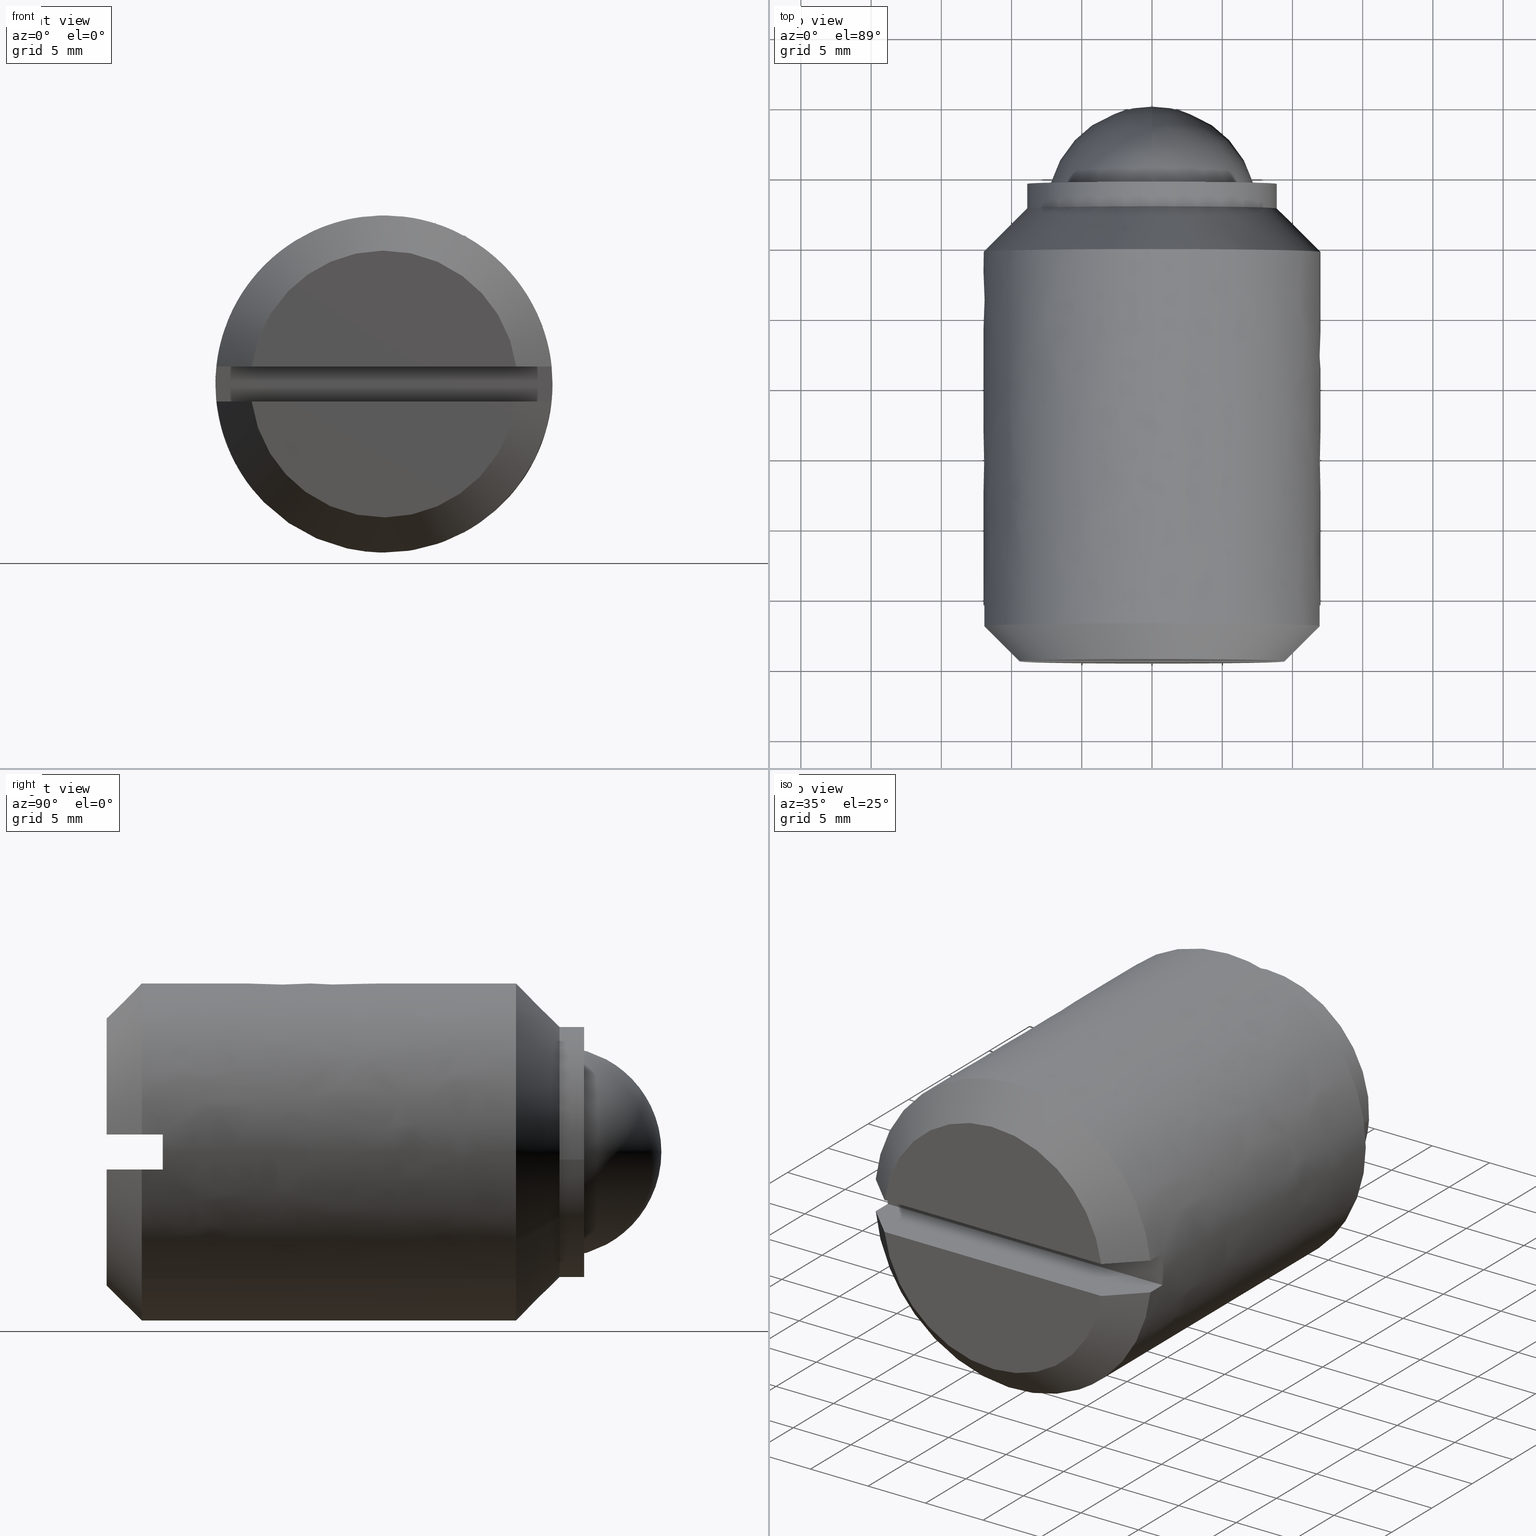
[diagram: canonical four-view strip — front | top / right | iso, engineering-drawing reading convention]
A machine part, canonical four-view strip (front | top / right | iso — engineering-drawing reading convention). The complete STEP part file that produces these views, byte-faithful:
ISO-10303-21;
HEADER;
/****************************************************************
 * Generated by software with PDE/Lib inside                    *
 * PDElib Version 4.4.1-0003, patched  Thursday August 19 11:58 *
 * International Technegroup Inc. (www.iti-oh.com)              *
 ****************************************************************/
FILE_DESCRIPTION((''),'2;1');
FILE_NAME('','2005-07-15T11:25:59',(''),(''),'','CADfix','');
FILE_SCHEMA(('AUTOMOTIVE_DESIGN'));
ENDSEC;
DATA;
#5=APPLICATION_CONTEXT('automotive design');
#6=APPLICATION_PROTOCOL_DEFINITION('Draft International Standard','automotive_design',1998,#5);
#7=PRODUCT_CONTEXT('None',#5,'mechanical');
#8=PRODUCT('body','','None',(#7));
#9=PRODUCT_RELATED_PRODUCT_CATEGORY('part','description',(#8));
#10=PRODUCT_DEFINITION_FORMATION('None','None',#8);
#11=PRODUCT_DEFINITION_CONTEXT('part definition',#5,'design');
#12=PRODUCT_DEFINITION('None','None',#10,#11);
#18=(NAMED_UNIT(*)PLANE_ANGLE_UNIT()SI_UNIT($,.RADIAN.));
#19=DIMENSIONAL_EXPONENTS(0.0,0.0,0.0,0.0,0.0,0.0,0.0);
#20=PLANE_ANGLE_MEASURE_WITH_UNIT(PLANE_ANGLE_MEASURE(0.017453292500000),#18);
#24=(CONVERSION_BASED_UNIT('DEGREE',#20)NAMED_UNIT(#19)PLANE_ANGLE_UNIT());
#28=(NAMED_UNIT(*)SI_UNIT($,.STERADIAN.)SOLID_ANGLE_UNIT());
#32=(LENGTH_UNIT()NAMED_UNIT(*)SI_UNIT(.MILLI.,.METRE.));
#34=UNCERTAINTY_MEASURE_WITH_UNIT(LENGTH_MEASURE(0.001000000000000),#32,'DISTANCE_ACCURACY_VALUE','');
#36=(GEOMETRIC_REPRESENTATION_CONTEXT(3)GLOBAL_UNCERTAINTY_ASSIGNED_CONTEXT((#34))GLOBAL_UNIT_ASSIGNED_CONTEXT((#24,#28,#32))REPRESENTATION_CONTEXT('None','None'));
#37=AXIS2_PLACEMENT_3D('',#38,#39,#40);
#38=CARTESIAN_POINT('',(0.0,0.0,0.0));
#39=DIRECTION('',(0.0,0.0,1.0));
#40=DIRECTION('',(1.0,0.0,0.0));
#41=ADVANCED_BREP_SHAPE_REPRESENTATION('',(#37,#997,#1208),#36);
#42=PRODUCT_DEFINITION_SHAPE('','',#12);
#43=SHAPE_DEFINITION_REPRESENTATION(#42,#41);
#44=CARTESIAN_POINT('',(-7.485154286804126,-22.925000000000001,0.483308473878778));
#45=CARTESIAN_POINT('',(-7.481029228246475,-22.925000000000004,0.535722312461008));
#46=CARTESIAN_POINT('',(-6.888436785039614,-22.925000000000011,8.065323220957298));
#47=CARTESIAN_POINT('',(0.588443217958842,-22.925000000000001,7.476880002998457));
#48=CARTESIAN_POINT('',(8.065323220957298,-22.925000000000011,6.888436785039614));
#49=CARTESIAN_POINT('',(7.472731682033918,-22.925000000000004,-0.641152633445634));
#50=CARTESIAN_POINT('',(7.468607517242433,-22.924999999999994,-0.693555115651955));
#51=CARTESIAN_POINT('',(-7.485154286804126,-5.064375000000001,0.483308473878778));
#52=CARTESIAN_POINT('',(-7.481029228246475,-5.064375000000001,0.535722312461008));
#53=CARTESIAN_POINT('',(-6.888436785039614,-5.064375000000001,8.065323220957298));
#54=CARTESIAN_POINT('',(0.588443217958842,-5.064375000000002,7.476880002998457));
#55=CARTESIAN_POINT('',(8.065323220957298,-5.064375000000001,6.888436785039614));
#56=CARTESIAN_POINT('',(7.472731682033918,-5.064375000000002,-0.641152633445634));
#57=CARTESIAN_POINT('',(7.468607517242433,-5.064375000000000,-0.693555115651955));
#65=(BOUNDED_SURFACE()B_SPLINE_SURFACE(2,1,((#44,#51),(#45,#52),(#46,#53),(#47,#54),(#48,#55),(#49,#56),(#50,#57)),.UNSPECIFIED.,.F.,.F.,.U.)B_SPLINE_SURFACE_WITH_KNOTS((3,1,2,1,3),(2,2),(0.0,0.124277731325298,12.550684602518150,24.977091473710999,25.101342040585809),(0.0,17.860625000000010),.UNSPECIFIED.)GEOMETRIC_REPRESENTATION_ITEM()RATIONAL_B_SPLINE_SURFACE(((1.005858508438040,1.005858508438040),(1.002929254219020,1.002929254219020),(0.707106781186548,0.707106781186548),(1.0,1.0),(0.707106781186548,0.707106781186548),(1.002928613946782,1.002928613946782),(1.005857227893564,1.005857227893564)))REPRESENTATION_ITEM('')SURFACE());
#66=CARTESIAN_POINT('',(0.0,-22.500000000000000,7.500000000000000));
#67=VERTEX_POINT('',#66);
#68=CARTESIAN_POINT('',(-7.476880918083197,-22.500000000000021,0.588431590473621));
#69=VERTEX_POINT('',#68);
#70=CARTESIAN_POINT('',(0.0,-22.500000000000000,7.500000000000000));
#71=CARTESIAN_POINT('',(-6.932939502354531,-22.500000000000004,7.500000000000000));
#72=CARTESIAN_POINT('',(-7.476880918083197,-22.500000000000018,0.588431590473621));
#80=(BOUNDED_CURVE()B_SPLINE_CURVE(2,(#70,#71,#72),.UNSPECIFIED.,.F.,.U.)B_SPLINE_CURVE_WITH_KNOTS((3,3),(0.0,0.236331567219372),.UNSPECIFIED.)CURVE()GEOMETRIC_REPRESENTATION_ITEM()RATIONAL_B_SPLINE_CURVE((1.0,0.723120346279562,0.969723912518388))REPRESENTATION_ITEM(''));
#81=EDGE_CURVE('',#67,#69,#80,.T.);
#82=ORIENTED_EDGE('',*,*,#81,.T.);
#83=CARTESIAN_POINT('',(-7.476880907055129,-5.500000000000000,0.588431730604044));
#84=VERTEX_POINT('',#83);
#85=CARTESIAN_POINT('',(-7.476880918083197,-22.500000000000021,0.588431590473621));
#86=CARTESIAN_POINT('',(-7.476880907055129,-5.500000000000000,0.588431730604044));
#87=QUASI_UNIFORM_CURVE('',1,(#85,#86),.UNSPECIFIED.,.F.,.U.);
#88=EDGE_CURVE('',#69,#84,#87,.T.);
#89=ORIENTED_EDGE('',*,*,#88,.T.);
#90=CARTESIAN_POINT('',(0.0,-5.500000000000000,7.500000000000000));
#91=VERTEX_POINT('',#90);
#92=CARTESIAN_POINT('',(0.0,-5.500000000000000,7.500000000000000));
#93=CARTESIAN_POINT('',(-6.932939372016810,-5.500000000000001,7.500000000000000));
#94=CARTESIAN_POINT('',(-7.476880907055129,-5.500000000000001,0.588431730604044));
#102=(BOUNDED_CURVE()B_SPLINE_CURVE(2,(#92,#93,#94),.UNSPECIFIED.,.F.,.U.)B_SPLINE_CURVE_WITH_KNOTS((3,3),(0.0,0.236331564006562),.UNSPECIFIED.)CURVE()GEOMETRIC_REPRESENTATION_ITEM()RATIONAL_B_SPLINE_CURVE((1.0,0.723120350043603,0.969723905813483))REPRESENTATION_ITEM(''));
#103=EDGE_CURVE('',#91,#84,#102,.T.);
#104=ORIENTED_EDGE('',*,*,#103,.F.);
#105=CARTESIAN_POINT('',(7.476880907055129,-5.500000000000000,-0.588431730604044));
#106=VERTEX_POINT('',#105);
#107=CARTESIAN_POINT('',(7.476880907055129,-5.500000000000000,-0.588431730604044));
#108=CARTESIAN_POINT('',(7.500000000000000,-5.500000000000000,-0.294670032226402));
#109=CARTESIAN_POINT('',(7.500000000000000,-5.500000000000000,0.0));
#110=CARTESIAN_POINT('',(7.500000000000000,-5.500000000000000,7.500000000000000));
#111=CARTESIAN_POINT('',(0.0,-5.500000000000000,7.500000000000000));
#119=(BOUNDED_CURVE()B_SPLINE_CURVE(2,(#107,#108,#109,#110,#111),.UNSPECIFIED.,.F.,.U.)B_SPLINE_CURVE_WITH_KNOTS((3,2,3),(0.736331564006562,0.750000000000000,1.0),.UNSPECIFIED.)CURVE()GEOMETRIC_REPRESENTATION_ITEM()RATIONAL_B_SPLINE_CURVE((0.969723905813483,0.983986431142945,1.0,0.707106781186547,1.0))REPRESENTATION_ITEM(''));
#120=EDGE_CURVE('',#106,#91,#119,.T.);
#121=ORIENTED_EDGE('',*,*,#120,.F.);
#122=CARTESIAN_POINT('',(7.476880918083197,-22.500000000000021,-0.588431590473619));
#123=VERTEX_POINT('',#122);
#124=CARTESIAN_POINT('',(7.476880918083197,-22.500000000000021,-0.588431590473619));
#125=CARTESIAN_POINT('',(7.476880907055129,-5.500000000000000,-0.588431730604044));
#126=QUASI_UNIFORM_CURVE('',1,(#124,#125),.UNSPECIFIED.,.F.,.U.);
#127=EDGE_CURVE('',#123,#106,#126,.T.);
#128=ORIENTED_EDGE('',*,*,#127,.F.);
#129=CARTESIAN_POINT('',(7.476880918083197,-22.500000000000014,-0.588431590473619));
#130=CARTESIAN_POINT('',(7.500000000000001,-22.500000000000000,-0.294669961836062));
#131=CARTESIAN_POINT('',(7.500000000000000,-22.500000000000000,0.0));
#132=CARTESIAN_POINT('',(7.500000000000000,-22.500000000000004,7.500000000000000));
#133=CARTESIAN_POINT('',(0.0,-22.500000000000000,7.500000000000000));
#141=(BOUNDED_CURVE()B_SPLINE_CURVE(2,(#129,#130,#131,#132,#133),.UNSPECIFIED.,.F.,.U.)B_SPLINE_CURVE_WITH_KNOTS((3,2,3),(0.736331567219372,0.750000000000000,1.0),.UNSPECIFIED.)CURVE()GEOMETRIC_REPRESENTATION_ITEM()RATIONAL_B_SPLINE_CURVE((0.969723912518388,0.983986434906986,1.0,0.707106781186547,1.0))REPRESENTATION_ITEM(''));
#142=EDGE_CURVE('',#123,#67,#141,.T.);
#143=ORIENTED_EDGE('',*,*,#142,.T.);
#144=EDGE_LOOP('',(#82,#89,#104,#121,#128,#143));
#145=FACE_OUTER_BOUND('',#144,.T.);
#146=ADVANCED_FACE('',(#145),#65,.F.);
#147=CARTESIAN_POINT('',(7.485154286804158,-22.924999999999997,-0.483308473878386));
#148=CARTESIAN_POINT('',(7.481029228246493,-22.925000000000008,-0.535722312460811));
#149=CARTESIAN_POINT('',(6.888436785039614,-22.925000000000011,-8.065323220957298));
#150=CARTESIAN_POINT('',(-0.588443217958842,-22.925000000000001,-7.476880002998457));
#151=CARTESIAN_POINT('',(-8.065323220957298,-22.925000000000011,-6.888436785039614));
#152=CARTESIAN_POINT('',(-7.472731682033916,-22.924999999999994,0.641152633445626));
#153=CARTESIAN_POINT('',(-7.468607517242435,-22.925000000000008,0.693555115651941));
#154=CARTESIAN_POINT('',(7.485154286804158,-5.064375000000001,-0.483308473878386));
#155=CARTESIAN_POINT('',(7.481029228246493,-5.064375000000002,-0.535722312460811));
#156=CARTESIAN_POINT('',(6.888436785039614,-5.064375000000001,-8.065323220957298));
#157=CARTESIAN_POINT('',(-0.588443217958842,-5.064375000000002,-7.476880002998457));
#158=CARTESIAN_POINT('',(-8.065323220957298,-5.064375000000001,-6.888436785039614));
#159=CARTESIAN_POINT('',(-7.472731682033916,-5.064375000000000,0.641152633445626));
#160=CARTESIAN_POINT('',(-7.468607517242435,-5.064375000000002,0.693555115651941));
#168=(BOUNDED_SURFACE()B_SPLINE_SURFACE(2,1,((#147,#154),(#148,#155),(#149,#156),(#150,#157),(#151,#158),(#152,#159),(#153,#160)),.UNSPECIFIED.,.F.,.F.,.U.)B_SPLINE_SURFACE_WITH_KNOTS((3,1,2,1,3),(2,2),(0.0,0.124277731325765,12.550684602518610,24.977091473711461,25.101342040586260),(0.0,17.860625000000010),.UNSPECIFIED.)GEOMETRIC_REPRESENTATION_ITEM()RATIONAL_B_SPLINE_SURFACE(((1.005858508438062,1.005858508438062),(1.002929254219031,1.002929254219031),(0.707106781186548,0.707106781186548),(1.0,1.0),(0.707106781186548,0.707106781186548),(1.002928613946782,1.002928613946782),(1.005857227893563,1.005857227893563)))REPRESENTATION_ITEM('')SURFACE());
#169=CARTESIAN_POINT('',(0.0,-22.500000000000000,-7.500000000000000));
#170=VERTEX_POINT('',#169);
#171=CARTESIAN_POINT('',(-7.476880918083197,-22.500000000000018,0.588431590473621));
#172=CARTESIAN_POINT('',(-7.499999999999999,-22.500000000000000,0.294669961836063));
#173=CARTESIAN_POINT('',(-7.500000000000000,-22.500000000000000,0.0));
#174=CARTESIAN_POINT('',(-7.500000000000000,-22.500000000000004,-7.500000000000000));
#175=CARTESIAN_POINT('',(0.0,-22.500000000000000,-7.500000000000000));
#183=(BOUNDED_CURVE()B_SPLINE_CURVE(2,(#171,#172,#173,#174,#175),.UNSPECIFIED.,.F.,.U.)B_SPLINE_CURVE_WITH_KNOTS((3,2,3),(0.236331567219372,0.250000000000000,0.500000000000000),.UNSPECIFIED.)CURVE()GEOMETRIC_REPRESENTATION_ITEM()RATIONAL_B_SPLINE_CURVE((0.969723912518388,0.983986434906986,1.0,0.707106781186547,1.0))REPRESENTATION_ITEM(''));
#184=EDGE_CURVE('',#69,#170,#183,.T.);
#185=ORIENTED_EDGE('',*,*,#184,.T.);
#186=CARTESIAN_POINT('',(0.0,-22.500000000000000,-7.500000000000000));
#187=CARTESIAN_POINT('',(6.932939502354533,-22.500000000000004,-7.500000000000000));
#188=CARTESIAN_POINT('',(7.476880918083197,-22.500000000000014,-0.588431590473619));
#196=(BOUNDED_CURVE()B_SPLINE_CURVE(2,(#186,#187,#188),.UNSPECIFIED.,.F.,.U.)B_SPLINE_CURVE_WITH_KNOTS((3,3),(0.500000000000000,0.736331567219372),.UNSPECIFIED.)CURVE()GEOMETRIC_REPRESENTATION_ITEM()RATIONAL_B_SPLINE_CURVE((1.0,0.723120346279562,0.969723912518388))REPRESENTATION_ITEM(''));
#197=EDGE_CURVE('',#170,#123,#196,.T.);
#198=ORIENTED_EDGE('',*,*,#197,.T.);
#199=ORIENTED_EDGE('',*,*,#127,.T.);
#200=CARTESIAN_POINT('',(0.0,-5.500000000000000,-7.500000000000000));
#201=VERTEX_POINT('',#200);
#202=CARTESIAN_POINT('',(0.0,-5.500000000000000,-7.500000000000000));
#203=CARTESIAN_POINT('',(6.932939372016812,-5.500000000000000,-7.500000000000000));
#204=CARTESIAN_POINT('',(7.476880907055129,-5.500000000000000,-0.588431730604044));
#212=(BOUNDED_CURVE()B_SPLINE_CURVE(2,(#202,#203,#204),.UNSPECIFIED.,.F.,.U.)B_SPLINE_CURVE_WITH_KNOTS((3,3),(0.500000000000000,0.736331564006562),.UNSPECIFIED.)CURVE()GEOMETRIC_REPRESENTATION_ITEM()RATIONAL_B_SPLINE_CURVE((1.0,0.723120350043603,0.969723905813483))REPRESENTATION_ITEM(''));
#213=EDGE_CURVE('',#201,#106,#212,.T.);
#214=ORIENTED_EDGE('',*,*,#213,.F.);
#215=CARTESIAN_POINT('',(-7.476880907055129,-5.500000000000001,0.588431730604044));
#216=CARTESIAN_POINT('',(-7.500000000000000,-5.500000000000001,0.294670032226404));
#217=CARTESIAN_POINT('',(-7.500000000000000,-5.500000000000000,0.0));
#218=CARTESIAN_POINT('',(-7.500000000000000,-5.500000000000000,-7.500000000000000));
#219=CARTESIAN_POINT('',(0.0,-5.500000000000000,-7.500000000000000));
#227=(BOUNDED_CURVE()B_SPLINE_CURVE(2,(#215,#216,#217,#218,#219),.UNSPECIFIED.,.F.,.U.)B_SPLINE_CURVE_WITH_KNOTS((3,2,3),(0.236331564006562,0.250000000000000,0.500000000000000),.UNSPECIFIED.)CURVE()GEOMETRIC_REPRESENTATION_ITEM()RATIONAL_B_SPLINE_CURVE((0.969723905813483,0.983986431142945,1.0,0.707106781186547,1.0))REPRESENTATION_ITEM(''));
#228=EDGE_CURVE('',#84,#201,#227,.T.);
#229=ORIENTED_EDGE('',*,*,#228,.F.);
#230=ORIENTED_EDGE('',*,*,#88,.F.);
#231=EDGE_LOOP('',(#185,#198,#199,#214,#229,#230));
#232=FACE_OUTER_BOUND('',#231,.T.);
#233=ADVANCED_FACE('',(#232),#168,.F.);
#234=CARTESIAN_POINT('',(8.883399705954613,-5.456249999999996,-0.543332001860230));
#235=CARTESIAN_POINT('',(9.426731707814840,-5.456249999999995,8.340067704094384));
#236=CARTESIAN_POINT('',(0.543332001860227,-5.456249999999996,8.883399705954611));
#237=CARTESIAN_POINT('',(-8.340067704094386,-5.456249999999995,9.426731707814838));
#238=CARTESIAN_POINT('',(-8.883399705954613,-5.456249999999996,0.543332001860225));
#239=CARTESIAN_POINT('',(8.883399705954613,-7.294843750000104,-0.543332001860230));
#240=CARTESIAN_POINT('',(9.426731707814840,-7.294843750000104,8.340067704094384));
#241=CARTESIAN_POINT('',(0.543332001860227,-7.294843750000104,8.883399705954611));
#242=CARTESIAN_POINT('',(-8.340067704094386,-7.294843750000104,9.426731707814838));
#243=CARTESIAN_POINT('',(-8.883399705954613,-7.294843750000104,0.543332001860225));
#251=(BOUNDED_SURFACE()B_SPLINE_SURFACE(2,1,((#234,#239),(#235,#240),(#236,#241),(#237,#242),(#238,#243)),.UNSPECIFIED.,.F.,.F.,.U.)B_SPLINE_SURFACE_WITH_KNOTS((3,2,3),(2,2),(0.0,14.746002820482181,29.492005640964368),(0.0,1.0),.UNSPECIFIED.)GEOMETRIC_REPRESENTATION_ITEM()RATIONAL_B_SPLINE_SURFACE(((1.0,1.0),(0.707106781186548,0.707106781186548),(1.0,1.0),(0.707106781186548,0.707106781186548),(1.0,1.0)))REPRESENTATION_ITEM('')SURFACE());
#252=CARTESIAN_POINT('',(8.883400014661509,-7.249999999999981,-0.543326954500055));
#253=VERTEX_POINT('',#252);
#254=CARTESIAN_POINT('',(0.0,-7.250000000000100,8.899999999999999));
#255=VERTEX_POINT('',#254);
#256=CARTESIAN_POINT('',(8.883400014661509,-7.249999999999981,-0.543326954500055));
#257=CARTESIAN_POINT('',(8.900000000000000,-7.250000000000100,-0.271917062601313));
#258=CARTESIAN_POINT('',(8.900000000000000,-7.250000000000100,-2.571673E-015));
#259=CARTESIAN_POINT('',(8.900000000000000,-7.250000000000100,8.899999999999999));
#260=CARTESIAN_POINT('',(0.0,-7.250000000000100,8.899999999999999));
#268=(BOUNDED_CURVE()B_SPLINE_CURVE(2,(#256,#257,#258,#259,#260),.UNSPECIFIED.,.F.,.U.)B_SPLINE_CURVE_WITH_KNOTS((3,2,3),(0.239333060279419,0.250000000000000,0.500000000000000),.UNSPECIFIED.)CURVE()GEOMETRIC_REPRESENTATION_ITEM()RATIONAL_B_SPLINE_CURVE((0.976072251786210,0.987502902761400,1.0,0.707106781186548,1.0))REPRESENTATION_ITEM(''));
#269=EDGE_CURVE('',#253,#255,#268,.T.);
#270=ORIENTED_EDGE('',*,*,#269,.F.);
#271=CARTESIAN_POINT('',(8.883400044957174,-5.500000000000000,-0.543326459160618));
#272=VERTEX_POINT('',#271);
#273=CARTESIAN_POINT('',(8.883400044957174,-5.500000000000000,-0.543326459160618));
#274=CARTESIAN_POINT('',(8.883400014661509,-7.249999999999981,-0.543326954500055));
#275=QUASI_UNIFORM_CURVE('',1,(#273,#274),.UNSPECIFIED.,.F.,.U.);
#276=EDGE_CURVE('',#272,#253,#275,.T.);
#277=ORIENTED_EDGE('',*,*,#276,.F.);
#278=CARTESIAN_POINT('',(0.0,-5.500000000000000,8.899999999999999));
#279=VERTEX_POINT('',#278);
#280=CARTESIAN_POINT('',(8.883400044957174,-5.500000000000000,-0.543326459160618));
#281=CARTESIAN_POINT('',(8.900000000000000,-5.500000000000001,-0.271916814237175));
#282=CARTESIAN_POINT('',(8.900000000000000,-5.500000000000000,-2.571673E-015));
#283=CARTESIAN_POINT('',(8.900000000000000,-5.500000000000001,8.899999999999999));
#284=CARTESIAN_POINT('',(0.0,-5.500000000000000,8.899999999999999));
#292=(BOUNDED_CURVE()B_SPLINE_CURVE(2,(#280,#281,#282,#283,#284),.UNSPECIFIED.,.F.,.U.)B_SPLINE_CURVE_WITH_KNOTS((3,2,3),(0.239333069900650,0.250000000000000,0.500000000000000),.UNSPECIFIED.)CURVE()GEOMETRIC_REPRESENTATION_ITEM()RATIONAL_B_SPLINE_CURVE((0.976072272406359,0.987502914033373,1.0,0.707106781186548,1.0))REPRESENTATION_ITEM(''));
#293=EDGE_CURVE('',#272,#279,#292,.T.);
#294=ORIENTED_EDGE('',*,*,#293,.T.);
#295=CARTESIAN_POINT('',(-8.883400044957174,-5.500000000000000,0.543326459160610));
#296=VERTEX_POINT('',#295);
#297=CARTESIAN_POINT('',(0.0,-5.500000000000000,8.899999999999999));
#298=CARTESIAN_POINT('',(-8.372289229018241,-5.500000000000001,8.899999999999997));
#299=CARTESIAN_POINT('',(-8.883400044957174,-5.500000000000000,0.543326459160610));
#307=(BOUNDED_CURVE()B_SPLINE_CURVE(2,(#297,#298,#299),.UNSPECIFIED.,.F.,.U.)B_SPLINE_CURVE_WITH_KNOTS((3,3),(0.500000000000000,0.739333069900650),.UNSPECIFIED.)CURVE()GEOMETRIC_REPRESENTATION_ITEM()RATIONAL_B_SPLINE_CURVE((1.0,0.719603867153174,0.976072272406359))REPRESENTATION_ITEM(''));
#308=EDGE_CURVE('',#279,#296,#307,.T.);
#309=ORIENTED_EDGE('',*,*,#308,.T.);
#310=CARTESIAN_POINT('',(-8.883399705955075,-7.250000000002036,0.543332001866780));
#311=VERTEX_POINT('',#310);
#312=CARTESIAN_POINT('',(-8.883400044957174,-5.500000000000000,0.543326459160610));
#313=CARTESIAN_POINT('',(-8.883399705955075,-7.250000000002036,0.543332001866780));
#314=QUASI_UNIFORM_CURVE('',1,(#312,#313),.UNSPECIFIED.,.F.,.U.);
#315=EDGE_CURVE('',#296,#311,#314,.T.);
#316=ORIENTED_EDGE('',*,*,#315,.T.);
#317=CARTESIAN_POINT('',(0.0,-7.250000000000100,8.899999999999999));
#318=CARTESIAN_POINT('',(-8.372283995436124,-7.250000000000100,8.899999999999999));
#319=CARTESIAN_POINT('',(-8.883399705955075,-7.250000000002036,0.543332001866780));
#327=(BOUNDED_CURVE()B_SPLINE_CURVE(2,(#317,#318,#319),.UNSPECIFIED.,.F.,.U.)B_SPLINE_CURVE_WITH_KNOTS((3,3),(0.500000000000000,0.739332962241463),.UNSPECIFIED.)CURVE()GEOMETRIC_REPRESENTATION_ITEM()RATIONAL_B_SPLINE_CURVE((1.0,0.719603993283758,0.976072041672119))REPRESENTATION_ITEM(''));
#328=EDGE_CURVE('',#255,#311,#327,.T.);
#329=ORIENTED_EDGE('',*,*,#328,.F.);
#330=EDGE_LOOP('',(#270,#277,#294,#309,#316,#329));
#331=FACE_OUTER_BOUND('',#330,.T.);
#332=ADVANCED_FACE('',(#331),#251,.T.);
#333=CARTESIAN_POINT('',(-8.883399705954613,-5.456249999999996,0.543332001860225));
#334=CARTESIAN_POINT('',(-9.426731707814840,-5.456249999999995,-8.340067704094388));
#335=CARTESIAN_POINT('',(-0.543332001860227,-5.456249999999996,-8.883399705954615));
#336=CARTESIAN_POINT('',(8.340067704094386,-5.456249999999995,-9.426731707814842));
#337=CARTESIAN_POINT('',(8.883399705954613,-5.456249999999996,-0.543332001860230));
#338=CARTESIAN_POINT('',(-8.883399705954613,-7.294843750000104,0.543332001860225));
#339=CARTESIAN_POINT('',(-9.426731707814840,-7.294843750000104,-8.340067704094388));
#340=CARTESIAN_POINT('',(-0.543332001860227,-7.294843750000104,-8.883399705954615));
#341=CARTESIAN_POINT('',(8.340067704094386,-7.294843750000104,-9.426731707814842));
#342=CARTESIAN_POINT('',(8.883399705954613,-7.294843750000104,-0.543332001860230));
#350=(BOUNDED_SURFACE()B_SPLINE_SURFACE(2,1,((#333,#338),(#334,#339),(#335,#340),(#336,#341),(#337,#342)),.UNSPECIFIED.,.F.,.F.,.U.)B_SPLINE_SURFACE_WITH_KNOTS((3,2,3),(2,2),(0.0,14.746002820482181,29.492005640964351),(0.0,1.0),.UNSPECIFIED.)GEOMETRIC_REPRESENTATION_ITEM()RATIONAL_B_SPLINE_SURFACE(((1.0,1.0),(0.707106781186548,0.707106781186548),(1.0,1.0),(0.707106781186548,0.707106781186548),(1.0,1.0)))REPRESENTATION_ITEM('')SURFACE());
#351=CARTESIAN_POINT('',(7.585456119837495,-7.250000000000375,-4.655196607451158));
#352=VERTEX_POINT('',#351);
#353=CARTESIAN_POINT('',(7.585456119837495,-7.250000000000375,-4.655196607451158));
#354=CARTESIAN_POINT('',(8.747744593448731,-7.250000000000100,-2.761294167100793));
#355=CARTESIAN_POINT('',(8.883400014661509,-7.249999999999981,-0.543326954500055));
#363=(BOUNDED_CURVE()B_SPLINE_CURVE(2,(#353,#354,#355),.UNSPECIFIED.,.F.,.U.)B_SPLINE_CURVE_WITH_KNOTS((3,3),(0.160617616591238,0.239333060279419),.UNSPECIFIED.)CURVE()GEOMETRIC_REPRESENTATION_ITEM()RATIONAL_B_SPLINE_CURVE((0.865443586338462,0.891721089529175,0.976072251786210))REPRESENTATION_ITEM(''));
#364=EDGE_CURVE('',#352,#253,#363,.T.);
#365=ORIENTED_EDGE('',*,*,#364,.F.);
#366=CARTESIAN_POINT('',(0.0,-7.250000000000100,-8.900000000000002));
#367=VERTEX_POINT('',#366);
#368=CARTESIAN_POINT('',(0.0,-7.250000000000100,-8.900000000000002));
#369=CARTESIAN_POINT('',(4.980419054150716,-7.250000000000101,-8.900000000000002));
#370=CARTESIAN_POINT('',(7.585456119837495,-7.250000000000375,-4.655196607451158));
#378=(BOUNDED_CURVE()B_SPLINE_CURVE(2,(#368,#369,#370),.UNSPECIFIED.,.F.,.U.)B_SPLINE_CURVE_WITH_KNOTS((3,3),(0.0,0.160617616591238),.UNSPECIFIED.)CURVE()GEOMETRIC_REPRESENTATION_ITEM()RATIONAL_B_SPLINE_CURVE((1.0,0.811824757113790,0.865443586338462))REPRESENTATION_ITEM(''));
#379=EDGE_CURVE('',#367,#352,#378,.T.);
#380=ORIENTED_EDGE('',*,*,#379,.F.);
#381=CARTESIAN_POINT('',(-8.883399705955075,-7.250000000002036,0.543332001866780));
#382=CARTESIAN_POINT('',(-8.900000000000000,-7.250000000000100,0.271919593370481));
#383=CARTESIAN_POINT('',(-8.900000000000000,-7.250000000000100,-2.571673E-015));
#384=CARTESIAN_POINT('',(-8.900000000000000,-7.250000000000100,-8.900000000000002));
#385=CARTESIAN_POINT('',(0.0,-7.250000000000100,-8.900000000000002));
#393=(BOUNDED_CURVE()B_SPLINE_CURVE(2,(#381,#382,#383,#384,#385),.UNSPECIFIED.,.F.,.U.)B_SPLINE_CURVE_WITH_KNOTS((3,2,3),(0.739332962241463,0.750000000000000,1.0),.UNSPECIFIED.)CURVE()GEOMETRIC_REPRESENTATION_ITEM()RATIONAL_B_SPLINE_CURVE((0.976072041672119,0.987502787902790,1.0,0.707106781186548,1.0))REPRESENTATION_ITEM(''));
#394=EDGE_CURVE('',#311,#367,#393,.T.);
#395=ORIENTED_EDGE('',*,*,#394,.F.);
#396=ORIENTED_EDGE('',*,*,#315,.F.);
#397=CARTESIAN_POINT('',(0.0,-5.500000000000000,-8.900000000000002));
#398=VERTEX_POINT('',#397);
#399=CARTESIAN_POINT('',(-8.883400044957174,-5.500000000000000,0.543326459160610));
#400=CARTESIAN_POINT('',(-8.900000000000000,-5.500000000000001,0.271916814237170));
#401=CARTESIAN_POINT('',(-8.900000000000000,-5.500000000000000,-2.571673E-015));
#402=CARTESIAN_POINT('',(-8.900000000000000,-5.500000000000001,-8.900000000000002));
#403=CARTESIAN_POINT('',(0.0,-5.500000000000000,-8.900000000000002));
#411=(BOUNDED_CURVE()B_SPLINE_CURVE(2,(#399,#400,#401,#402,#403),.UNSPECIFIED.,.F.,.U.)B_SPLINE_CURVE_WITH_KNOTS((3,2,3),(0.739333069900650,0.750000000000000,1.0),.UNSPECIFIED.)CURVE()GEOMETRIC_REPRESENTATION_ITEM()RATIONAL_B_SPLINE_CURVE((0.976072272406359,0.987502914033373,1.0,0.707106781186548,1.0))REPRESENTATION_ITEM(''));
#412=EDGE_CURVE('',#296,#398,#411,.T.);
#413=ORIENTED_EDGE('',*,*,#412,.T.);
#414=CARTESIAN_POINT('',(0.0,-5.500000000000000,-8.900000000000002));
#415=CARTESIAN_POINT('',(8.372289229018241,-5.500000000000001,-8.900000000000002));
#416=CARTESIAN_POINT('',(8.883400044957174,-5.500000000000000,-0.543326459160618));
#424=(BOUNDED_CURVE()B_SPLINE_CURVE(2,(#414,#415,#416),.UNSPECIFIED.,.F.,.U.)B_SPLINE_CURVE_WITH_KNOTS((3,3),(0.0,0.239333069900650),.UNSPECIFIED.)CURVE()GEOMETRIC_REPRESENTATION_ITEM()RATIONAL_B_SPLINE_CURVE((1.0,0.719603867153174,0.976072272406359))REPRESENTATION_ITEM(''));
#425=EDGE_CURVE('',#398,#272,#424,.T.);
#426=ORIENTED_EDGE('',*,*,#425,.T.);
#427=ORIENTED_EDGE('',*,*,#276,.T.);
#428=EDGE_LOOP('',(#365,#380,#395,#396,#413,#426,#427));
#429=FACE_OUTER_BOUND('',#428,.T.);
#430=ADVANCED_FACE('',(#429),#350,.T.);
#431=CARTESIAN_POINT('',(7.519402990706377,-7.172500000000099,-4.614659783056164));
#432=CARTESIAN_POINT('',(8.671569020301051,-7.172500000000101,-2.737251459145703));
#433=CARTESIAN_POINT('',(8.806044259076920,-7.172500000000102,-0.538600740046278));
#434=CARTESIAN_POINT('',(9.344644999123196,-7.172500000000102,8.267443519030641));
#435=CARTESIAN_POINT('',(0.538600740046276,-7.172500000000102,8.806044259076918));
#436=CARTESIAN_POINT('',(-8.267443519030644,-7.172500000000102,9.344644999123194));
#437=CARTESIAN_POINT('',(-8.806044259076920,-7.172500000000102,0.538600740046273));
#438=CARTESIAN_POINT('',(10.295285742538956,-10.429437499999997,-6.318219828074808));
#439=CARTESIAN_POINT('',(11.872788439519626,-10.429437499999999,-3.747742467841770));
#440=CARTESIAN_POINT('',(12.056906914111931,-10.429437500000001,-0.737432017777580));
#441=CARTESIAN_POINT('',(12.794338931889508,-10.429437499999999,11.319474896334350));
#442=CARTESIAN_POINT('',(0.737432017777578,-10.429437500000001,12.056906914111931));
#443=CARTESIAN_POINT('',(-11.319474896334356,-10.429437499999999,12.794338931889506));
#444=CARTESIAN_POINT('',(-12.056906914111931,-10.429437500000001,0.737432017777575));
#452=(BOUNDED_SURFACE()B_SPLINE_SURFACE(2,1,((#431,#438),(#432,#439),(#433,#440),(#434,#441),(#435,#442),(#436,#443),(#437,#444)),.UNSPECIFIED.,.F.,.F.,.U.)B_SPLINE_SURFACE_WITH_KNOTS((3,2,2,3),(2,2),(0.0,6.404437553072783,26.418304906425220,46.432172259777651),(0.0,4.606005184301373),.UNSPECIFIED.)GEOMETRIC_REPRESENTATION_ITEM()RATIONAL_B_SPLINE_SURFACE(((0.872532871172386,0.872532871172386),(0.906274169979695,0.906274169979695),(1.0,1.0),(0.707106781186548,0.707106781186548),(1.0,1.0),(0.707106781186548,0.707106781186548),(1.0,1.0)))REPRESENTATION_ITEM('')SURFACE());
#453=CARTESIAN_POINT('',(10.227581285169300,-10.350000000000980,-6.276669583089166));
#454=VERTEX_POINT('',#453);
#455=CARTESIAN_POINT('',(0.0,-10.350000000000000,12.0));
#456=VERTEX_POINT('',#455);
#457=CARTESIAN_POINT('',(10.227581285169304,-10.350000000000975,-6.276669583089166));
#458=CARTESIAN_POINT('',(11.999999999999996,-10.350000000000001,-3.388584391209628));
#459=CARTESIAN_POINT('',(12.0,-10.350000000000000,-2.571673E-015));
#460=CARTESIAN_POINT('',(12.0,-10.350000000000001,11.999999999999998));
#461=CARTESIAN_POINT('',(0.0,-10.350000000000000,12.0));
#469=(BOUNDED_CURVE()B_SPLINE_CURVE(2,(#457,#458,#459,#460,#461),.UNSPECIFIED.,.F.,.U.)B_SPLINE_CURVE_WITH_KNOTS((3,2,3),(0.160617616590979,0.250000000000000,0.500000000000000),.UNSPECIFIED.)CURVE()GEOMETRIC_REPRESENTATION_ITEM()RATIONAL_B_SPLINE_CURVE((0.865443586338289,0.895282024072454,1.0,0.707106781186548,1.0))REPRESENTATION_ITEM(''));
#470=EDGE_CURVE('',#454,#456,#469,.T.);
#471=ORIENTED_EDGE('',*,*,#470,.F.);
#472=CARTESIAN_POINT('',(7.585456119837495,-7.250000000000375,-4.655196607451158));
#473=CARTESIAN_POINT('',(10.227581285169300,-10.350000000000980,-6.276669583089166));
#474=QUASI_UNIFORM_CURVE('',1,(#472,#473),.UNSPECIFIED.,.F.,.U.);
#475=EDGE_CURVE('',#352,#454,#474,.T.);
#476=ORIENTED_EDGE('',*,*,#475,.F.);
#477=ORIENTED_EDGE('',*,*,#364,.T.);
#478=ORIENTED_EDGE('',*,*,#269,.T.);
#479=ORIENTED_EDGE('',*,*,#328,.T.);
#480=CARTESIAN_POINT('',(-11.977617581065591,-10.350000000006011,0.732582474463767));
#481=VERTEX_POINT('',#480);
#482=CARTESIAN_POINT('',(-8.883399705955075,-7.250000000002036,0.543332001866780));
#483=CARTESIAN_POINT('',(-11.977617581065591,-10.350000000006011,0.732582474463767));
#484=QUASI_UNIFORM_CURVE('',1,(#482,#483),.UNSPECIFIED.,.F.,.U.);
#485=EDGE_CURVE('',#311,#481,#484,.T.);
#486=ORIENTED_EDGE('',*,*,#485,.T.);
#487=CARTESIAN_POINT('',(0.0,-10.350000000000000,12.0));
#488=CARTESIAN_POINT('',(-11.288472802783120,-10.350000000000001,11.999999999999998));
#489=CARTESIAN_POINT('',(-11.977617581065589,-10.350000000006006,0.732582474463767));
#497=(BOUNDED_CURVE()B_SPLINE_CURVE(2,(#487,#488,#489),.UNSPECIFIED.,.F.,.U.)B_SPLINE_CURVE_WITH_KNOTS((3,3),(0.500000000000000,0.739332962240668),.UNSPECIFIED.)CURVE()GEOMETRIC_REPRESENTATION_ITEM()RATIONAL_B_SPLINE_CURVE((1.0,0.719603993284689,0.976072041670415))REPRESENTATION_ITEM(''));
#498=EDGE_CURVE('',#456,#481,#497,.T.);
#499=ORIENTED_EDGE('',*,*,#498,.F.);
#500=EDGE_LOOP('',(#471,#476,#477,#478,#479,#486,#499));
#501=FACE_OUTER_BOUND('',#500,.T.);
#502=ADVANCED_FACE('',(#501),#452,.T.);
#503=CARTESIAN_POINT('',(-8.806044259076920,-7.172500000000102,0.538600740046273));
#504=CARTESIAN_POINT('',(-9.344644999123196,-7.172500000000102,-8.267443519030646));
#505=CARTESIAN_POINT('',(-0.538600740046276,-7.172500000000102,-8.806044259076922));
#506=CARTESIAN_POINT('',(4.748688009489147,-7.172500000000101,-9.129428692490686));
#507=CARTESIAN_POINT('',(7.519402990706377,-7.172500000000099,-4.614659783056164));
#508=CARTESIAN_POINT('',(-12.056906914111931,-10.429437500000001,0.737432017777575));
#509=CARTESIAN_POINT('',(-12.794338931889508,-10.429437499999999,-11.319474896334356));
#510=CARTESIAN_POINT('',(-0.737432017777578,-10.429437500000001,-12.056906914111931));
#511=CARTESIAN_POINT('',(6.501726270062118,-10.429437499999997,-12.499672802680299));
#512=CARTESIAN_POINT('',(10.295285742538956,-10.429437499999997,-6.318219828074808));
#520=(BOUNDED_SURFACE()B_SPLINE_SURFACE(2,1,((#503,#508),(#504,#509),(#505,#510),(#506,#511),(#507,#512)),.UNSPECIFIED.,.F.,.F.,.U.)B_SPLINE_SURFACE_WITH_KNOTS((3,2,3),(2,2),(0.0,20.013867353352431,33.623297153632080),(0.0,4.606005184301374),.UNSPECIFIED.)GEOMETRIC_REPRESENTATION_ITEM()RATIONAL_B_SPLINE_SURFACE(((1.0,1.0),(0.707106781186548,0.707106781186548),(1.0,1.0),(0.800832611206852,0.800832611206852),(0.872532871172386,0.872532871172386)))REPRESENTATION_ITEM('')SURFACE());
#521=CARTESIAN_POINT('',(7.907633907891853,-10.350000000000000,-9.026036005842066));
#522=VERTEX_POINT('',#521);
#523=CARTESIAN_POINT('',(7.907633907891853,-10.349999999999998,-9.026036005842066));
#524=CARTESIAN_POINT('',(9.276014710696218,-10.350000000000003,-7.827209142293152));
#525=CARTESIAN_POINT('',(10.227581285169304,-10.350000000000975,-6.276669583089166));
#533=(BOUNDED_CURVE()B_SPLINE_CURVE(2,(#523,#524,#525),.UNSPECIFIED.,.F.,.U.)B_SPLINE_CURVE_WITH_KNOTS((3,3),(0.115045263890947,0.160617616590979),.UNSPECIFIED.)CURVE()GEOMETRIC_REPRESENTATION_ITEM()RATIONAL_B_SPLINE_CURVE((0.854482183304713,0.850230210317461,0.865443586338289))REPRESENTATION_ITEM(''));
#534=EDGE_CURVE('',#522,#454,#533,.T.);
#535=ORIENTED_EDGE('',*,*,#534,.F.);
#536=CARTESIAN_POINT('',(0.0,-10.350000000000000,-12.0));
#537=VERTEX_POINT('',#536);
#538=CARTESIAN_POINT('',(0.0,-10.350000000000000,-12.0));
#539=CARTESIAN_POINT('',(4.513052620490948,-10.350000000000000,-12.000000000000002));
#540=CARTESIAN_POINT('',(7.907633907891853,-10.349999999999998,-9.026036005842066));
#548=(BOUNDED_CURVE()B_SPLINE_CURVE(2,(#538,#539,#540),.UNSPECIFIED.,.F.,.U.)B_SPLINE_CURVE_WITH_KNOTS((3,3),(0.0,0.115045263890947),.UNSPECIFIED.)CURVE()GEOMETRIC_REPRESENTATION_ITEM()RATIONAL_B_SPLINE_CURVE((1.0,0.865216089398950,0.854482183304713))REPRESENTATION_ITEM(''));
#549=EDGE_CURVE('',#537,#522,#548,.T.);
#550=ORIENTED_EDGE('',*,*,#549,.F.);
#551=CARTESIAN_POINT('',(-8.559016019970436,-10.350000000000000,-8.410900354281903));
#552=VERTEX_POINT('',#551);
#553=CARTESIAN_POINT('',(-8.559016019970436,-10.349999999999996,-8.410900354281903));
#554=CARTESIAN_POINT('',(-5.032026537631244,-10.349999999999998,-12.000000000000007));
#555=CARTESIAN_POINT('',(0.0,-10.350000000000000,-12.0));
#563=(BOUNDED_CURVE()B_SPLINE_CURVE(2,(#553,#554,#555),.UNSPECIFIED.,.F.,.U.)B_SPLINE_CURVE_WITH_KNOTS((3,3),(0.873683051704970,1.0),.UNSPECIFIED.)CURVE()GEOMETRIC_REPRESENTATION_ITEM()RATIONAL_B_SPLINE_CURVE((0.853569645958957,0.852010489692705,1.0))REPRESENTATION_ITEM(''));
#564=EDGE_CURVE('',#552,#537,#563,.T.);
#565=ORIENTED_EDGE('',*,*,#564,.F.);
#566=CARTESIAN_POINT('',(-11.977617581065587,-10.350000000006006,0.732582474463767));
#567=CARTESIAN_POINT('',(-11.999999999999995,-10.350000000000001,0.366633159628313));
#568=CARTESIAN_POINT('',(-12.0,-10.350000000000000,-2.571673E-015));
#569=CARTESIAN_POINT('',(-12.000000000000004,-10.350000000000001,-4.909320764835662));
#570=CARTESIAN_POINT('',(-8.559016019970436,-10.349999999999996,-8.410900354281903));
#578=(BOUNDED_CURVE()B_SPLINE_CURVE(2,(#566,#567,#568,#569,#570),.UNSPECIFIED.,.F.,.U.)B_SPLINE_CURVE_WITH_KNOTS((3,2,3),(0.739332962240668,0.750000000000000,0.873683051704970),.UNSPECIFIED.)CURVE()GEOMETRIC_REPRESENTATION_ITEM()RATIONAL_B_SPLINE_CURVE((0.976072041670415,0.987502787901859,1.0,0.855096291493842,0.853569645958957))REPRESENTATION_ITEM(''));
#579=EDGE_CURVE('',#481,#552,#578,.T.);
#580=ORIENTED_EDGE('',*,*,#579,.F.);
#581=ORIENTED_EDGE('',*,*,#485,.F.);
#582=ORIENTED_EDGE('',*,*,#394,.T.);
#583=ORIENTED_EDGE('',*,*,#379,.T.);
#584=ORIENTED_EDGE('',*,*,#475,.T.);
#585=EDGE_LOOP('',(#535,#550,#565,#580,#581,#582,#583,#584));
#586=FACE_OUTER_BOUND('',#585,.T.);
#587=ADVANCED_FACE('',(#586),#520,.T.);
#588=CARTESIAN_POINT('',(7.907634865919236,-9.683749999999996,-9.026035166522366));
#589=CARTESIAN_POINT('',(8.165956114538119,-9.683749999999998,-8.799722054009475));
#590=CARTESIAN_POINT('',(8.410911171598208,-9.683749999999996,-8.559005389850178));
#591=CARTESIAN_POINT('',(16.969916561448382,-9.683749999999996,-0.148094218251970));
#592=CARTESIAN_POINT('',(8.559005389850176,-9.683749999999996,8.410911171598206));
#593=CARTESIAN_POINT('',(0.148094218251968,-9.683749999999996,16.969916561448382));
#594=CARTESIAN_POINT('',(-8.410911171598208,-9.683749999999996,8.559005389850174));
#595=CARTESIAN_POINT('',(-16.969916561448382,-9.683749999999996,0.148094218251966));
#596=CARTESIAN_POINT('',(-8.559005389850176,-9.683749999999996,-8.410911171598210));
#597=CARTESIAN_POINT('',(7.907634865919236,-37.682906250000016,-9.026035166522366));
#598=CARTESIAN_POINT('',(8.165956114538119,-37.682906250000009,-8.799722054009475));
#599=CARTESIAN_POINT('',(8.410911171598208,-37.682906250000009,-8.559005389850178));
#600=CARTESIAN_POINT('',(16.969916561448382,-37.682906250000002,-0.148094218251970));
#601=CARTESIAN_POINT('',(8.559005389850176,-37.682906250000009,8.410911171598206));
#602=CARTESIAN_POINT('',(0.148094218251968,-37.682906250000002,16.969916561448382));
#603=CARTESIAN_POINT('',(-8.410911171598208,-37.682906250000009,8.559005389850174));
#604=CARTESIAN_POINT('',(-16.969916561448382,-37.682906250000002,0.148094218251966));
#605=CARTESIAN_POINT('',(-8.559005389850176,-37.682906250000009,-8.410911171598210));
#613=(BOUNDED_SURFACE()B_SPLINE_SURFACE(2,1,((#588,#597),(#589,#598),(#590,#599),(#591,#600),(#592,#601),(#593,#602),(#594,#603),(#595,#604),(#596,#605)),.UNSPECIFIED.,.F.,.F.,.U.)B_SPLINE_SURFACE_WITH_KNOTS((3,2,2,2,3),(2,2),(0.0,0.795290039756343,20.677541033664902,40.559792027573458,60.442043021482007),(0.0,27.999156250000020),.UNSPECIFIED.)GEOMETRIC_REPRESENTATION_ITEM()RATIONAL_B_SPLINE_SURFACE(((0.977505800795127,0.977505800795127),(0.988284271247462,0.988284271247462),(1.0,1.0),(0.707106781186548,0.707106781186548),(1.0,1.0),(0.707106781186548,0.707106781186548),(1.0,1.0),(0.707106781186548,0.707106781186548),(1.0,1.0)))REPRESENTATION_ITEM('')SURFACE());
#614=CARTESIAN_POINT('',(7.907634641947571,-37.0,-9.026035362742084));
#615=VERTEX_POINT('',#614);
#616=CARTESIAN_POINT('',(11.934718262280001,-37.0,-1.250000000000000));
#617=VERTEX_POINT('',#616);
#618=CARTESIAN_POINT('',(7.907634641947570,-37.000000000000007,-9.026035362742084));
#619=CARTESIAN_POINT('',(11.444854756407841,-37.0,-5.927106343645696));
#620=CARTESIAN_POINT('',(11.934718262280009,-37.0,-1.250000000000000));
#628=(BOUNDED_CURVE()B_SPLINE_CURVE(2,(#618,#619,#620),.UNSPECIFIED.,.F.,.U.)B_SPLINE_CURVE_WITH_KNOTS((3,3),(0.745516412150955,1.0),.UNSPECIFIED.)CURVE()GEOMETRIC_REPRESENTATION_ITEM()RATIONAL_B_SPLINE_CURVE((0.871552879233715,0.869207195110739,1.0))REPRESENTATION_ITEM(''));
#629=EDGE_CURVE('',#615,#617,#628,.T.);
#630=ORIENTED_EDGE('',*,*,#629,.F.);
#631=CARTESIAN_POINT('',(7.907633907891853,-10.350000000000000,-9.026036005842066));
#632=CARTESIAN_POINT('',(7.907634641947571,-37.0,-9.026035362742084));
#633=QUASI_UNIFORM_CURVE('',1,(#631,#632),.UNSPECIFIED.,.F.,.U.);
#634=EDGE_CURVE('',#522,#615,#633,.T.);
#635=ORIENTED_EDGE('',*,*,#634,.F.);
#636=ORIENTED_EDGE('',*,*,#534,.T.);
#637=ORIENTED_EDGE('',*,*,#470,.T.);
#638=ORIENTED_EDGE('',*,*,#498,.T.);
#639=ORIENTED_EDGE('',*,*,#579,.T.);
#640=CARTESIAN_POINT('',(-8.559005889002759,-36.999999999999972,-8.410910663656793));
#641=VERTEX_POINT('',#640);
#642=CARTESIAN_POINT('',(-8.559016019970436,-10.350000000000000,-8.410900354281903));
#643=CARTESIAN_POINT('',(-8.559005889002759,-36.999999999999972,-8.410910663656793));
#644=QUASI_UNIFORM_CURVE('',1,(#642,#643),.UNSPECIFIED.,.F.,.U.);
#645=EDGE_CURVE('',#552,#641,#644,.T.);
#646=ORIENTED_EDGE('',*,*,#645,.T.);
#647=CARTESIAN_POINT('',(-11.934718262280001,-37.0,-1.249999999999988));
#648=VERTEX_POINT('',#647);
#649=CARTESIAN_POINT('',(-11.934718262280009,-37.0,-1.249999999999984));
#650=CARTESIAN_POINT('',(-11.497943696049369,-37.0,-5.420225113673860));
#651=CARTESIAN_POINT('',(-8.559005889002759,-36.999999999999972,-8.410910663656793));
#659=(BOUNDED_CURVE()B_SPLINE_CURVE(2,(#649,#650,#651),.UNSPECIFIED.,.F.,.U.)B_SPLINE_CURVE_WITH_KNOTS((3,3),(0.0,0.230166470996834),.UNSPECIFIED.)CURVE()GEOMETRIC_REPRESENTATION_ITEM()RATIONAL_B_SPLINE_CURVE((1.0,0.881705069519077,0.872320245780594))REPRESENTATION_ITEM(''));
#660=EDGE_CURVE('',#648,#641,#659,.T.);
#661=ORIENTED_EDGE('',*,*,#660,.F.);
#662=CARTESIAN_POINT('',(-11.934718262280001,-35.500000000000000,-1.249999999999988));
#663=VERTEX_POINT('',#662);
#664=CARTESIAN_POINT('',(-11.934718262280001,-35.500000000000000,-1.249999999999988));
#665=CARTESIAN_POINT('',(-11.934718262280001,-37.0,-1.249999999999988));
#666=QUASI_UNIFORM_CURVE('',1,(#664,#665),.UNSPECIFIED.,.F.,.U.);
#667=EDGE_CURVE('',#663,#648,#666,.T.);
#668=ORIENTED_EDGE('',*,*,#667,.F.);
#669=CARTESIAN_POINT('',(-11.934718262280001,-35.500000000000000,1.250000000000000));
#670=VERTEX_POINT('',#669);
#671=CARTESIAN_POINT('',(-11.934718262280009,-35.500000000000000,1.250000000000006));
#672=CARTESIAN_POINT('',(-12.065638822419107,-35.500000000000007,1.431147E-014));
#673=CARTESIAN_POINT('',(-11.934718262280009,-35.500000000000000,-1.249999999999983));
#681=(BOUNDED_CURVE()B_SPLINE_CURVE(2,(#671,#672,#673),.UNSPECIFIED.,.F.,.U.)CURVE()GEOMETRIC_REPRESENTATION_ITEM()QUASI_UNIFORM_CURVE()RATIONAL_B_SPLINE_CURVE((1.0,0.994559855190001,1.0))REPRESENTATION_ITEM(''));
#682=EDGE_CURVE('',#670,#663,#681,.T.);
#683=ORIENTED_EDGE('',*,*,#682,.F.);
#684=CARTESIAN_POINT('',(-11.934718262280001,-37.0,1.250000000000000));
#685=VERTEX_POINT('',#684);
#686=CARTESIAN_POINT('',(-11.934718262280001,-35.500000000000000,1.250000000000000));
#687=CARTESIAN_POINT('',(-11.934718262280001,-37.0,1.250000000000000));
#688=QUASI_UNIFORM_CURVE('',1,(#686,#687),.UNSPECIFIED.,.F.,.U.);
#689=EDGE_CURVE('',#670,#685,#688,.T.);
#690=ORIENTED_EDGE('',*,*,#689,.T.);
#691=CARTESIAN_POINT('',(11.934718000000000,-37.0,1.250000000000000));
#692=VERTEX_POINT('',#691);
#693=CARTESIAN_POINT('',(11.934718000000000,-37.0,1.250000000000000));
#694=CARTESIAN_POINT('',(10.808801419051667,-37.0,12.000000012304392));
#695=CARTESIAN_POINT('',(-0.000000013660415,-37.0,12.0));
#696=CARTESIAN_POINT('',(-10.808801446372494,-37.0,11.999999987695604));
#697=CARTESIAN_POINT('',(-11.934718262280009,-37.0,1.250000000000005));
#705=(BOUNDED_CURVE()B_SPLINE_CURVE(2,(#693,#694,#695,#696,#697),.UNSPECIFIED.,.F.,.U.)B_SPLINE_CURVE_WITH_KNOTS((3,2,3),(0.0,0.500000000000000,1.0),.UNSPECIFIED.)CURVE()GEOMETRIC_REPRESENTATION_ITEM()RATIONAL_B_SPLINE_CURVE((1.0,0.743023104552894,1.0,0.743023104552894,1.0))REPRESENTATION_ITEM(''));
#706=EDGE_CURVE('',#692,#685,#705,.T.);
#707=ORIENTED_EDGE('',*,*,#706,.F.);
#708=CARTESIAN_POINT('',(11.934718000000000,-35.500000000000000,1.250000000000000));
#709=VERTEX_POINT('',#708);
#710=CARTESIAN_POINT('',(11.934718000000000,-35.500000000000000,1.250000000000000));
#711=CARTESIAN_POINT('',(11.934718000000000,-37.0,1.250000000000000));
#712=QUASI_UNIFORM_CURVE('',1,(#710,#711),.UNSPECIFIED.,.F.,.U.);
#713=EDGE_CURVE('',#709,#692,#712,.T.);
#714=ORIENTED_EDGE('',*,*,#713,.F.);
#715=CARTESIAN_POINT('',(11.934718262280001,-35.500000000000000,-1.250000000000000));
#716=VERTEX_POINT('',#715);
#717=CARTESIAN_POINT('',(11.934718262280009,-35.500000000000000,-1.250000000000007));
#718=CARTESIAN_POINT('',(12.065638823857675,-35.500000000000007,0.000000013735133));
#719=CARTESIAN_POINT('',(11.934718000000000,-35.500000000000000,1.250000000000000));
#727=(BOUNDED_CURVE()B_SPLINE_CURVE(2,(#717,#718,#719),.UNSPECIFIED.,.F.,.U.)CURVE()GEOMETRIC_REPRESENTATION_ITEM()QUASI_UNIFORM_CURVE()RATIONAL_B_SPLINE_CURVE((1.0,0.994559855071421,1.0))REPRESENTATION_ITEM(''));
#728=EDGE_CURVE('',#716,#709,#727,.T.);
#729=ORIENTED_EDGE('',*,*,#728,.F.);
#730=CARTESIAN_POINT('',(11.934718262280001,-35.500000000000000,-1.250000000000000));
#731=CARTESIAN_POINT('',(11.934718262280001,-37.0,-1.250000000000000));
#732=QUASI_UNIFORM_CURVE('',1,(#730,#731),.UNSPECIFIED.,.F.,.U.);
#733=EDGE_CURVE('',#716,#617,#732,.T.);
#734=ORIENTED_EDGE('',*,*,#733,.T.);
#735=EDGE_LOOP('',(#630,#635,#636,#637,#638,#639,#646,#661,#668,#683,#690,#707,#714,#729,#734));
#736=FACE_OUTER_BOUND('',#735,.T.);
#737=ADVANCED_FACE('',(#736),#613,.T.);
#738=CARTESIAN_POINT('',(-8.615951080744052,-9.683749999999995,-8.352962815546693));
#739=CARTESIAN_POINT('',(-8.587518216182540,-9.683749999999995,-8.381896308727864));
#740=CARTESIAN_POINT('',(-0.616132492251538,-9.683749999999998,-16.493637353632511));
#741=CARTESIAN_POINT('',(7.938933723357414,-9.683749999999996,-8.998614496009187));
#742=CARTESIAN_POINT('',(7.970149971565586,-9.683749999999998,-8.971266198760173));
#743=CARTESIAN_POINT('',(-8.615951080744052,-37.682906250000002,-8.352962815546693));
#744=CARTESIAN_POINT('',(-8.587518216182540,-37.682906250000002,-8.381896308727864));
#745=CARTESIAN_POINT('',(-0.616132492251538,-37.682906250000016,-16.493637353632511));
#746=CARTESIAN_POINT('',(7.938933723357414,-37.682906250000016,-8.998614496009187));
#747=CARTESIAN_POINT('',(7.970149971565586,-37.682906250000016,-8.971266198760173));
#755=(BOUNDED_SURFACE()B_SPLINE_SURFACE(2,1,((#738,#743),(#739,#744),(#740,#745),(#741,#746),(#742,#747)),.UNSPECIFIED.,.F.,.F.,.U.)B_SPLINE_SURFACE_WITH_KNOTS((3,1,1,3),(2,2),(0.0,0.095426461941200,19.177149166446679,19.272557524033779),(0.0,27.999156250000031),.UNSPECIFIED.)GEOMETRIC_REPRESENTATION_ITEM()RATIONAL_B_SPLINE_SURFACE(((1.002812300909046,1.002812300909046),(1.001406150454523,1.001406150454523),(0.718822509939086,0.718822509939086),(0.978799213779793,0.978799213779793),(0.980092626764458,0.980092626764458)))REPRESENTATION_ITEM('')SURFACE());
#756=CARTESIAN_POINT('',(-8.559005889002759,-36.999999999999972,-8.410910663656793));
#757=CARTESIAN_POINT('',(-5.032018458476447,-37.0,-12.000000000000005));
#758=CARTESIAN_POINT('',(0.0,-37.0,-12.0));
#759=CARTESIAN_POINT('',(4.513053007525511,-37.0,-12.000000000000002));
#760=CARTESIAN_POINT('',(7.907634641947570,-37.000000000000007,-9.026035362742084));
#768=(BOUNDED_CURVE()B_SPLINE_CURVE(2,(#756,#757,#758,#759,#760),.UNSPECIFIED.,.F.,.U.)B_SPLINE_CURVE_WITH_KNOTS((3,2,3),(0.230166470996835,0.500000000000000,0.745516412150955),.UNSPECIFIED.)CURVE()GEOMETRIC_REPRESENTATION_ITEM()RATIONAL_B_SPLINE_CURVE((0.872320245780594,0.861318034652881,1.0,0.873815909061219,0.871552879233715))REPRESENTATION_ITEM(''));
#769=EDGE_CURVE('',#641,#615,#768,.T.);
#770=ORIENTED_EDGE('',*,*,#769,.F.);
#771=ORIENTED_EDGE('',*,*,#645,.F.);
#772=ORIENTED_EDGE('',*,*,#564,.T.);
#773=ORIENTED_EDGE('',*,*,#549,.T.);
#774=ORIENTED_EDGE('',*,*,#634,.T.);
#775=EDGE_LOOP('',(#770,#771,#772,#773,#774));
#776=FACE_OUTER_BOUND('',#775,.T.);
#777=ADVANCED_FACE('',(#776),#755,.T.);
#778=CARTESIAN_POINT('',(-13.198480099117360,-35.500000000000000,1.374874995154515));
#779=CARTESIAN_POINT('',(13.198479604928490,-35.500000000000000,1.374874995154515));
#780=CARTESIAN_POINT('',(-13.198480099117360,-35.500000000000000,-1.374875062209740));
#781=CARTESIAN_POINT('',(13.198479604928490,-35.500000000000000,-1.374875062209740));
#782=B_SPLINE_SURFACE_WITH_KNOTS('',1,1,((#778,#780),(#779,#781)),.UNSPECIFIED.,.F.,.F.,.U.,(2,2),(2,2),(0.0,26.396959704045859),(0.0,2.749750057364255),.UNSPECIFIED.);
#783=CARTESIAN_POINT('',(11.934718262280001,-35.500000000000000,-1.250000000000000));
#784=CARTESIAN_POINT('',(-11.934718262280001,-35.500000000000000,-1.249999999999988));
#785=QUASI_UNIFORM_CURVE('',1,(#783,#784),.UNSPECIFIED.,.F.,.U.);
#786=EDGE_CURVE('',#716,#663,#785,.T.);
#787=ORIENTED_EDGE('',*,*,#786,.F.);
#788=ORIENTED_EDGE('',*,*,#728,.T.);
#789=CARTESIAN_POINT('',(-11.934718262280001,-35.500000000000000,1.250000000000000));
#790=CARTESIAN_POINT('',(11.934718000000000,-35.500000000000000,1.250000000000000));
#791=QUASI_UNIFORM_CURVE('',1,(#789,#790),.UNSPECIFIED.,.F.,.U.);
#792=EDGE_CURVE('',#670,#709,#791,.T.);
#793=ORIENTED_EDGE('',*,*,#792,.F.);
#794=ORIENTED_EDGE('',*,*,#682,.T.);
#795=EDGE_LOOP('',(#787,#788,#793,#794));
#796=FACE_OUTER_BOUND('',#795,.T.);
#797=ADVANCED_FACE('',(#796),#782,.F.);
#798=CARTESIAN_POINT('',(13.126996519106481,-39.699799992247229,1.250000000000000));
#799=CARTESIAN_POINT('',(-13.126997208205260,-39.699799992247229,1.250000000000000));
#800=CARTESIAN_POINT('',(13.126996519106481,-35.300199900464413,1.250000000000000));
#801=CARTESIAN_POINT('',(-13.126997208205260,-35.300199900464413,1.250000000000000));
#802=B_SPLINE_SURFACE_WITH_KNOTS('',1,1,((#798,#800),(#799,#801)),.UNSPECIFIED.,.F.,.F.,.U.,(2,2),(2,2),(0.0,26.253993727311741),(0.0,4.399600091782816),.UNSPECIFIED.);
#803=CARTESIAN_POINT('',(9.417404100918681,-39.500000000000000,1.250000000000000));
#804=VERTEX_POINT('',#803);
#805=CARTESIAN_POINT('',(11.934718000000000,-37.0,1.250000000000000));
#806=CARTESIAN_POINT('',(11.096215337260400,-37.833939275278922,1.250000000000000));
#807=CARTESIAN_POINT('',(10.257283544523320,-38.667446589261750,1.250000000000000));
#808=CARTESIAN_POINT('',(9.417404100918681,-39.500000000000000,1.250000000000000));
#809=B_SPLINE_CURVE_WITH_KNOTS('',3,(#805,#806,#807,#808),.UNSPECIFIED.,.F.,.U.,(4,4),(0.0,0.109279410904712),.UNSPECIFIED.);
#810=EDGE_CURVE('',#692,#804,#809,.T.);
#811=ORIENTED_EDGE('',*,*,#810,.T.);
#812=CARTESIAN_POINT('',(-9.417404100918681,-39.500000000000000,1.250000000000000));
#813=VERTEX_POINT('',#812);
#814=CARTESIAN_POINT('',(-9.417404100918681,-39.500000000000000,1.250000000000000));
#815=CARTESIAN_POINT('',(9.417404100918681,-39.500000000000000,1.250000000000000));
#816=QUASI_UNIFORM_CURVE('',1,(#814,#815),.UNSPECIFIED.,.F.,.U.);
#817=EDGE_CURVE('',#813,#804,#816,.T.);
#818=ORIENTED_EDGE('',*,*,#817,.F.);
#819=CARTESIAN_POINT('',(-9.417404100918681,-39.500000000000000,1.250000000000000));
#820=CARTESIAN_POINT('',(-10.257283071186110,-38.667445756195953,1.250000000000000));
#821=CARTESIAN_POINT('',(-11.096215729404991,-37.833939285093351,1.250000000000000));
#822=CARTESIAN_POINT('',(-11.934718262280001,-37.0,1.250000000000000));
#823=B_SPLINE_CURVE_WITH_KNOTS('',3,(#819,#820,#821,#822),.UNSPECIFIED.,.F.,.U.,(4,4),(0.889901592982240,1.0),.UNSPECIFIED.);
#824=EDGE_CURVE('',#813,#685,#823,.T.);
#825=ORIENTED_EDGE('',*,*,#824,.T.);
#826=ORIENTED_EDGE('',*,*,#689,.F.);
#827=ORIENTED_EDGE('',*,*,#792,.T.);
#828=ORIENTED_EDGE('',*,*,#713,.T.);
#829=EDGE_LOOP('',(#811,#818,#825,#826,#827,#828));
#830=FACE_OUTER_BOUND('',#829,.T.);
#831=ADVANCED_FACE('',(#830),#802,.T.);
#832=CARTESIAN_POINT('',(-13.126996570418180,-39.699799992247229,-1.250000000000000));
#833=CARTESIAN_POINT('',(13.126997210646360,-39.699799992247229,-1.250000000000000));
#834=CARTESIAN_POINT('',(-13.126996570418180,-35.300199900464413,-1.250000000000000));
#835=CARTESIAN_POINT('',(13.126997210646360,-35.300199900464413,-1.250000000000000));
#836=B_SPLINE_SURFACE_WITH_KNOTS('',1,1,((#832,#834),(#833,#835)),.UNSPECIFIED.,.F.,.F.,.U.,(2,2),(2,2),(0.0,26.253993781064530),(0.0,4.399600091782816),.UNSPECIFIED.);
#837=CARTESIAN_POINT('',(-9.417404100918681,-39.500000000000000,-1.250000000000000));
#838=VERTEX_POINT('',#837);
#839=CARTESIAN_POINT('',(-11.934718262280001,-37.0,-1.249999999999988));
#840=CARTESIAN_POINT('',(-11.096215512164330,-37.833939275329712,-1.249999999999992));
#841=CARTESIAN_POINT('',(-10.257283632019661,-38.667446589331732,-1.249999999999996));
#842=CARTESIAN_POINT('',(-9.417404100918681,-39.500000000000000,-1.250000000000000));
#843=B_SPLINE_CURVE_WITH_KNOTS('',3,(#839,#840,#841,#842),.UNSPECIFIED.,.F.,.U.,(4,4),(0.0,0.109279415963887),.UNSPECIFIED.);
#844=EDGE_CURVE('',#648,#838,#843,.T.);
#845=ORIENTED_EDGE('',*,*,#844,.T.);
#846=CARTESIAN_POINT('',(9.417404100918681,-39.500000000000000,-1.250000000000000));
#847=VERTEX_POINT('',#846);
#848=CARTESIAN_POINT('',(9.417404100918681,-39.500000000000000,-1.250000000000000));
#849=CARTESIAN_POINT('',(-9.417404100918681,-39.500000000000000,-1.250000000000000));
#850=QUASI_UNIFORM_CURVE('',1,(#848,#849),.UNSPECIFIED.,.F.,.U.);
#851=EDGE_CURVE('',#847,#838,#850,.T.);
#852=ORIENTED_EDGE('',*,*,#851,.F.);
#853=CARTESIAN_POINT('',(9.417404100918681,-39.500000000000000,-1.250000000000000));
#854=CARTESIAN_POINT('',(10.257283071186119,-38.667445756196940,-1.250000000000000));
#855=CARTESIAN_POINT('',(11.096215729404530,-37.833939285093649,-1.250000000000000));
#856=CARTESIAN_POINT('',(11.934718262280001,-37.0,-1.250000000000000));
#857=B_SPLINE_CURVE_WITH_KNOTS('',3,(#853,#854,#855,#856),.UNSPECIFIED.,.F.,.U.,(4,4),(0.889901593570560,1.0),.UNSPECIFIED.);
#858=EDGE_CURVE('',#847,#617,#857,.T.);
#859=ORIENTED_EDGE('',*,*,#858,.T.);
#860=ORIENTED_EDGE('',*,*,#733,.F.);
#861=ORIENTED_EDGE('',*,*,#786,.T.);
#862=ORIENTED_EDGE('',*,*,#667,.T.);
#863=EDGE_LOOP('',(#845,#852,#859,#860,#861,#862));
#864=FACE_OUTER_BOUND('',#863,.T.);
#865=ADVANCED_FACE('',(#864),#836,.T.);
#866=CARTESIAN_POINT('',(-8.246961208688450,-22.500000000000000,8.249249970927089));
#867=CARTESIAN_POINT('',(8.246961074578001,-22.500000000000000,8.249249970927089));
#868=CARTESIAN_POINT('',(-8.246961208688450,-22.500000000000000,-8.249250373258443));
#869=CARTESIAN_POINT('',(8.246961074578001,-22.500000000000000,-8.249250373258443));
#870=B_SPLINE_SURFACE_WITH_KNOTS('',1,1,((#866,#868),(#867,#869)),.UNSPECIFIED.,.F.,.F.,.U.,(2,2),(2,2),(0.0,16.493922283266450),(0.0,16.498500344185530),.UNSPECIFIED.);
#871=ORIENTED_EDGE('',*,*,#142,.F.);
#872=ORIENTED_EDGE('',*,*,#197,.F.);
#873=ORIENTED_EDGE('',*,*,#184,.F.);
#874=ORIENTED_EDGE('',*,*,#81,.F.);
#875=EDGE_LOOP('',(#871,#872,#873,#874));
#876=FACE_OUTER_BOUND('',#875,.T.);
#877=ADVANCED_FACE('',(#876),#870,.T.);
#878=CARTESIAN_POINT('',(-9.788891344833242,-5.500000000000000,9.789109567718713));
#879=CARTESIAN_POINT('',(-9.788891344833242,-5.500000000000000,-9.789109090285512));
#880=CARTESIAN_POINT('',(9.788891981410851,-5.500000000000000,9.789109567718713));
#881=CARTESIAN_POINT('',(9.788891981410851,-5.500000000000000,-9.789109090285512));
#882=B_SPLINE_SURFACE_WITH_KNOTS('',1,1,((#878,#880),(#879,#881)),.UNSPECIFIED.,.F.,.F.,.U.,(2,2),(2,2),(0.0,19.578218658004229),(0.0,19.577783326244099),.UNSPECIFIED.);
#883=ORIENTED_EDGE('',*,*,#412,.F.);
#884=ORIENTED_EDGE('',*,*,#308,.F.);
#885=ORIENTED_EDGE('',*,*,#293,.F.);
#886=ORIENTED_EDGE('',*,*,#425,.F.);
#887=EDGE_LOOP('',(#883,#884,#885,#886));
#888=FACE_OUTER_BOUND('',#887,.T.);
#889=ORIENTED_EDGE('',*,*,#213,.T.);
#890=ORIENTED_EDGE('',*,*,#120,.T.);
#891=ORIENTED_EDGE('',*,*,#103,.T.);
#892=ORIENTED_EDGE('',*,*,#228,.T.);
#893=EDGE_LOOP('',(#889,#890,#891,#892));
#894=FACE_BOUND('',#893,.T.);
#895=ADVANCED_FACE('',(#888,#894),#882,.F.);
#896=CARTESIAN_POINT('',(-10.358202910902650,-39.500000000000000,0.837912515990102));
#897=CARTESIAN_POINT('',(-10.358202910902650,-39.500000000000000,9.912087705292132));
#898=CARTESIAN_POINT('',(10.358203247695270,-39.500000000000000,0.837912515990102));
#899=CARTESIAN_POINT('',(10.358203247695270,-39.500000000000000,9.912087705292132));
#900=B_SPLINE_SURFACE_WITH_KNOTS('',1,1,((#896,#898),(#897,#899)),.UNSPECIFIED.,.F.,.F.,.U.,(2,2),(2,2),(0.0,9.074175189302030),(0.0,20.716406158597909),.UNSPECIFIED.);
#901=ORIENTED_EDGE('',*,*,#817,.T.);
#902=CARTESIAN_POINT('',(9.417404100918681,-39.500000000000000,1.250000000000000));
#903=CARTESIAN_POINT('',(8.322357112439761,-39.500000000000000,9.499999999999998));
#904=CARTESIAN_POINT('',(0.0,-39.500000000000000,9.499999999999998));
#905=CARTESIAN_POINT('',(-8.322357112439761,-39.500000000000000,9.499999999999998));
#906=CARTESIAN_POINT('',(-9.417404100918681,-39.500000000000000,1.250000000000002));
#914=(BOUNDED_CURVE()B_SPLINE_CURVE(2,(#902,#903,#904,#905,#906),.UNSPECIFIED.,.F.,.U.)B_SPLINE_CURVE_WITH_KNOTS((3,2,3),(0.0,0.500000000000000,1.0),.UNSPECIFIED.)CURVE()GEOMETRIC_REPRESENTATION_ITEM()RATIONAL_B_SPLINE_CURVE((1.0,0.752189785681919,1.0,0.752189785681919,1.0))REPRESENTATION_ITEM(''));
#915=EDGE_CURVE('',#804,#813,#914,.T.);
#916=ORIENTED_EDGE('',*,*,#915,.T.);
#917=EDGE_LOOP('',(#901,#916));
#918=FACE_OUTER_BOUND('',#917,.T.);
#919=ADVANCED_FACE('',(#918),#900,.F.);
#920=CARTESIAN_POINT('',(-10.358202910902650,-39.500000000000000,-9.912087484009893));
#921=CARTESIAN_POINT('',(-10.358202910902650,-39.500000000000000,-0.837912294707858));
#922=CARTESIAN_POINT('',(10.358203247695270,-39.500000000000000,-9.912087484009893));
#923=CARTESIAN_POINT('',(10.358203247695270,-39.500000000000000,-0.837912294707858));
#924=B_SPLINE_SURFACE_WITH_KNOTS('',1,1,((#920,#922),(#921,#923)),.UNSPECIFIED.,.F.,.F.,.U.,(2,2),(2,2),(0.0,9.074175189302036),(0.0,20.716406158597909),.UNSPECIFIED.);
#925=ORIENTED_EDGE('',*,*,#851,.T.);
#926=CARTESIAN_POINT('',(-9.417404100918683,-39.500000000000000,-1.249999999999996));
#927=CARTESIAN_POINT('',(-8.322357112439772,-39.500000000000000,-9.500000000000002));
#928=CARTESIAN_POINT('',(0.0,-39.500000000000000,-9.500000000000002));
#929=CARTESIAN_POINT('',(8.322357112439770,-39.500000000000000,-9.500000000000002));
#930=CARTESIAN_POINT('',(9.417404100918683,-39.500000000000000,-1.250000000000000));
#938=(BOUNDED_CURVE()B_SPLINE_CURVE(2,(#926,#927,#928,#929,#930),.UNSPECIFIED.,.F.,.U.)B_SPLINE_CURVE_WITH_KNOTS((3,2,3),(0.0,0.500000000000000,1.0),.UNSPECIFIED.)CURVE()GEOMETRIC_REPRESENTATION_ITEM()RATIONAL_B_SPLINE_CURVE((1.0,0.752189785681918,1.0,0.752189785681918,1.0))REPRESENTATION_ITEM(''));
#939=EDGE_CURVE('',#838,#847,#938,.T.);
#940=ORIENTED_EDGE('',*,*,#939,.T.);
#941=EDGE_LOOP('',(#925,#940));
#942=FACE_OUTER_BOUND('',#941,.T.);
#943=ADVANCED_FACE('',(#942),#924,.F.);
#944=CARTESIAN_POINT('',(9.394380055848849,-39.562500000000007,0.901126859143493));
#945=CARTESIAN_POINT('',(12.008941789935241,-36.935937499999987,1.151920609179950));
#946=CARTESIAN_POINT('',(8.554065665173694,-39.562500000000014,9.661527986133308));
#947=CARTESIAN_POINT('',(10.934758443842046,-36.935937499999987,12.350439996843564));
#948=CARTESIAN_POINT('',(-0.243612933696937,-39.562500000000007,9.434355250282660));
#949=CARTESIAN_POINT('',(-0.311413155806962,-36.935937499999987,12.060042531031840));
#950=CARTESIAN_POINT('',(-9.041291532567570,-39.562500000000014,9.207182514432015));
#951=CARTESIAN_POINT('',(-11.557584755455972,-36.935937499999987,11.769645065220105));
#952=CARTESIAN_POINT('',(-9.428367214275172,-39.562500000000007,0.415087849474704));
#953=CARTESIAN_POINT('',(-12.052387957188490,-36.935937499999987,0.530611471157976));
#961=(BOUNDED_SURFACE()B_SPLINE_SURFACE(1,2,((#944,#946,#948,#950,#952),(#945,#947,#949,#951,#953)),.UNSPECIFIED.,.F.,.F.,.U.)B_SPLINE_SURFACE_WITH_KNOTS((2,2),(3,2,3),(0.0,3.714520309920581),(0.0,19.008642388893570,38.017284777787140),.UNSPECIFIED.)GEOMETRIC_REPRESENTATION_ITEM()RATIONAL_B_SPLINE_SURFACE(((1.0,0.731353701619171,1.0,0.731353701619171,1.0),(1.0,0.731353701619171,1.0,0.731353701619171,1.0)))REPRESENTATION_ITEM('')SURFACE());
#962=ORIENTED_EDGE('',*,*,#810,.F.);
#963=ORIENTED_EDGE('',*,*,#706,.T.);
#964=ORIENTED_EDGE('',*,*,#824,.F.);
#965=ORIENTED_EDGE('',*,*,#915,.F.);
#966=EDGE_LOOP('',(#962,#963,#964,#965));
#967=FACE_OUTER_BOUND('',#966,.T.);
#968=ADVANCED_FACE('',(#967),#961,.T.);
#969=CARTESIAN_POINT('',(-9.394380057900486,-39.562500000000000,-0.901126837754960));
#970=CARTESIAN_POINT('',(-12.008941792557859,-36.935937499999987,-1.151920581838746));
#971=CARTESIAN_POINT('',(-8.554065687170466,-39.562500000000000,-9.661527966657957));
#972=CARTESIAN_POINT('',(-10.934758471960757,-36.935937499999987,-12.350439971947992));
#973=CARTESIAN_POINT('',(0.243612912217387,-39.562500000000000,-9.434355250837315));
#974=CARTESIAN_POINT('',(0.311413128349409,-36.935937499999987,-12.060042531740841));
#975=CARTESIAN_POINT('',(9.041291511605239,-39.562500000000000,-9.207182535016672));
#976=CARTESIAN_POINT('',(11.557584728659577,-36.935937499999987,-11.769645091533697));
#977=CARTESIAN_POINT('',(9.428367213330132,-39.562500000000000,-0.415087870940627));
#978=CARTESIAN_POINT('',(12.052387955980420,-36.935937499999987,-0.530611498598105));
#986=(BOUNDED_SURFACE()B_SPLINE_SURFACE(1,2,((#969,#971,#973,#975,#977),(#970,#972,#974,#976,#978)),.UNSPECIFIED.,.F.,.F.,.U.)B_SPLINE_SURFACE_WITH_KNOTS((2,2),(3,2,3),(0.0,3.714520309920569),(0.0,19.008642388893570,38.017284777787133),.UNSPECIFIED.)GEOMETRIC_REPRESENTATION_ITEM()RATIONAL_B_SPLINE_SURFACE(((1.0,0.731353701619171,1.0,0.731353701619171,1.0),(1.0,0.731353701619171,1.0,0.731353701619171,1.0)))REPRESENTATION_ITEM('')SURFACE());
#987=ORIENTED_EDGE('',*,*,#844,.F.);
#988=ORIENTED_EDGE('',*,*,#660,.T.);
#989=ORIENTED_EDGE('',*,*,#769,.T.);
#990=ORIENTED_EDGE('',*,*,#629,.T.);
#991=ORIENTED_EDGE('',*,*,#858,.F.);
#992=ORIENTED_EDGE('',*,*,#939,.F.);
#993=EDGE_LOOP('',(#987,#988,#989,#990,#991,#992));
#994=FACE_OUTER_BOUND('',#993,.T.);
#995=ADVANCED_FACE('',(#994),#986,.T.);
#996=CLOSED_SHELL('',(#146,#233,#332,#430,#502,#587,#737,#777,#797,#831,#865,#877,#895,#919,#943,#968,#995));
#997=MANIFOLD_SOLID_BREP('body',#996);
#998=APPLICATION_CONTEXT('automotive design');
#999=APPLICATION_PROTOCOL_DEFINITION('Draft International Standard','automotive_design',1998,#998);
#1000=PRODUCT_CONTEXT('None',#998,'mechanical');
#1001=PRODUCT('ball','','None',(#1000));
#1002=PRODUCT_RELATED_PRODUCT_CATEGORY('part','description',(#1001));
#1003=PRODUCT_DEFINITION_FORMATION('None','None',#1001);
#1004=PRODUCT_DEFINITION_CONTEXT('part definition',#998,'design');
#1005=PRODUCT_DEFINITION('None','None',#1003,#1004);
#1011=(NAMED_UNIT(*)PLANE_ANGLE_UNIT()SI_UNIT($,.RADIAN.));
#1012=DIMENSIONAL_EXPONENTS(0.0,0.0,0.0,0.0,0.0,0.0,0.0);
#1013=PLANE_ANGLE_MEASURE_WITH_UNIT(PLANE_ANGLE_MEASURE(0.017453292500000),#1011);
#1017=(CONVERSION_BASED_UNIT('DEGREE',#1013)NAMED_UNIT(#1012)PLANE_ANGLE_UNIT());
#1021=(NAMED_UNIT(*)SI_UNIT($,.STERADIAN.)SOLID_ANGLE_UNIT());
#1025=(LENGTH_UNIT()NAMED_UNIT(*)SI_UNIT(.MILLI.,.METRE.));
#1027=UNCERTAINTY_MEASURE_WITH_UNIT(LENGTH_MEASURE(0.001000000000000),#1025,'DISTANCE_ACCURACY_VALUE','');
#1029=(GEOMETRIC_REPRESENTATION_CONTEXT(3)GLOBAL_UNCERTAINTY_ASSIGNED_CONTEXT((#1027))GLOBAL_UNIT_ASSIGNED_CONTEXT((#1017,#1021,#1025))REPRESENTATION_CONTEXT('None','None'));
#1030=AXIS2_PLACEMENT_3D('',#1031,#1032,#1033);
#1031=CARTESIAN_POINT('',(0.0,0.0,0.0));
#1032=DIRECTION('',(0.0,0.0,1.0));
#1033=DIRECTION('',(1.0,0.0,0.0));
#1034=ADVANCED_BREP_SHAPE_REPRESENTATION('',(#1030,#1168,#1224),#1029);
#1035=PRODUCT_DEFINITION_SHAPE('','',#1005);
#1036=SHAPE_DEFINITION_REPRESENTATION(#1035,#1034);
#1037=CARTESIAN_POINT('',(-2.812499999999999,-12.416291475797584,-4.916291475797581));
#1038=CARTESIAN_POINT('',(-1.839622641509435,-11.952490393175173,-5.936653857566891));
#1039=CARTESIAN_POINT('',(-0.357142857142858,-9.372872943160985,-7.491491772643938));
#1040=CARTESIAN_POINT('',(-0.357142857142858,-5.627127056839014,-7.491491772643938));
#1041=CARTESIAN_POINT('',(-1.839622641509435,-3.047509606824831,-5.936653857566891));
#1042=CARTESIAN_POINT('',(-2.812499999999999,-2.583708524202416,-4.916291475797581));
#1043=CARTESIAN_POINT('',(-1.839622641509435,-13.436653857566895,-4.452490393175170));
#1044=CARTESIAN_POINT('',(-0.357142857142858,-13.118618829482951,-5.618618829482952));
#1045=CARTESIAN_POINT('',(2.177419354838709,-10.037440761701980,-7.612322285105936));
#1046=CARTESIAN_POINT('',(2.177419354838709,-4.962559238298021,-7.612322285105936));
#1047=CARTESIAN_POINT('',(-0.357142857142858,-1.881381170517047,-5.618618829482952));
#1048=CARTESIAN_POINT('',(-1.839622641509435,-1.563346142433108,-4.452490393175170));
#1049=CARTESIAN_POINT('',(-0.357142857142858,-14.991491772643936,-1.872872943160982));
#1050=CARTESIAN_POINT('',(2.177419354838709,-15.112322285105934,-2.537440761701977));
#1051=CARTESIAN_POINT('',(7.499999999999997,-11.433033180638070,-3.933033180638065));
#1052=CARTESIAN_POINT('',(7.499999999999997,-3.566966819361932,-3.933033180638065));
#1053=CARTESIAN_POINT('',(2.177419354838709,0.112322285105937,-2.537440761701977));
#1054=CARTESIAN_POINT('',(-0.357142857142858,-0.008508227356063,-1.872872943160982));
#1055=CARTESIAN_POINT('',(-0.357142857142858,-14.991491772643936,1.872872943160987));
#1056=CARTESIAN_POINT('',(2.177419354838709,-15.112322285105934,2.537440761701981));
#1057=CARTESIAN_POINT('',(7.499999999999997,-11.433033180638070,3.933033180638070));
#1058=CARTESIAN_POINT('',(7.499999999999997,-3.566966819361932,3.933033180638070));
#1059=CARTESIAN_POINT('',(2.177419354838709,0.112322285105937,2.537440761701981));
#1060=CARTESIAN_POINT('',(-0.357142857142858,-0.008508227356063,1.872872943160987));
#1061=CARTESIAN_POINT('',(-1.839622641509435,-13.436653857566895,4.452490393175173));
#1062=CARTESIAN_POINT('',(-0.357142857142858,-13.118618829482951,5.618618829482957));
#1063=CARTESIAN_POINT('',(2.177419354838709,-10.037440761701980,7.612322285105941));
#1064=CARTESIAN_POINT('',(2.177419354838709,-4.962559238298021,7.612322285105941));
#1065=CARTESIAN_POINT('',(-0.357142857142858,-1.881381170517047,5.618618829482957));
#1066=CARTESIAN_POINT('',(-1.839622641509435,-1.563346142433108,4.452490393175173));
#1067=CARTESIAN_POINT('',(-2.812499999999999,-12.416291475797584,4.916291475797585));
#1068=CARTESIAN_POINT('',(-1.839622641509435,-11.952490393175173,5.936653857566895));
#1069=CARTESIAN_POINT('',(-0.357142857142858,-9.372872943160985,7.491491772643938));
#1070=CARTESIAN_POINT('',(-0.357142857142858,-5.627127056839014,7.491491772643938));
#1071=CARTESIAN_POINT('',(-1.839622641509435,-3.047509606824831,5.936653857566895));
#1072=CARTESIAN_POINT('',(-2.812499999999999,-2.583708524202416,4.916291475797585));
#1080=(BOUNDED_SURFACE()B_SPLINE_SURFACE(2,2,((#1037,#1043,#1049,#1055,#1061,#1067),(#1038,#1044,#1050,#1056,#1062,#1068),(#1039,#1045,#1051,#1057,#1063,#1069),(#1040,#1046,#1052,#1058,#1064,#1070),(#1041,#1047,#1053,#1059,#1065,#1071),(#1042,#1048,#1054,#1060,#1066,#1072)),.UNSPECIFIED.,.F.,.F.,.U.)B_SPLINE_SURFACE_WITH_KNOTS((3,1,1,1,3),(3,1,1,1,3),(0.0,6.915223174748254,13.830446349496510,20.745669524244761,27.660892698993020),(0.0,6.915223174748252,13.830446349496510,20.745669524244761,27.660892698993010),.UNSPECIFIED.)GEOMETRIC_REPRESENTATION_ITEM()RATIONAL_B_SPLINE_SURFACE(((3.200000000000000,2.650000000000000,2.100000000000000,2.100000000000000,2.650000000000000,3.200000000000000),(2.650000000000000,2.100000000000000,1.550000000000000,1.550000000000000,2.100000000000000,2.650000000000000),(2.100000000000000,1.550000000000000,1.0,1.0,1.550000000000000,2.100000000000000),(2.100000000000000,1.550000000000000,1.0,1.0,1.550000000000000,2.100000000000000),(2.650000000000000,2.100000000000000,1.550000000000000,1.550000000000000,2.100000000000000,2.650000000000000),(3.200000000000000,2.650000000000000,2.100000000000000,2.100000000000000,2.650000000000000,3.200000000000000)))REPRESENTATION_ITEM('')SURFACE());
#1081=CARTESIAN_POINT('',(0.0,0.0,2.112446E-015));
#1082=VERTEX_POINT('',#1081);
#1083=CARTESIAN_POINT('',(0.0,-15.0,2.112446E-015));
#1084=VERTEX_POINT('',#1083);
#1085=CARTESIAN_POINT('',(0.0,0.0,2.112446E-015));
#1086=CARTESIAN_POINT('',(0.0,0.0,7.500000000000004));
#1087=CARTESIAN_POINT('',(0.0,-7.500000000000000,7.500000000000002));
#1088=CARTESIAN_POINT('',(0.0,-14.999999999999996,7.500000000000004));
#1089=CARTESIAN_POINT('',(0.0,-15.0,2.112446E-015));
#1097=(BOUNDED_CURVE()B_SPLINE_CURVE(2,(#1085,#1086,#1087,#1088,#1089),.UNSPECIFIED.,.F.,.U.)B_SPLINE_CURVE_WITH_KNOTS((3,2,3),(0.0,0.500000000000000,1.0),.UNSPECIFIED.)CURVE()GEOMETRIC_REPRESENTATION_ITEM()RATIONAL_B_SPLINE_CURVE((1.0,0.707106781186547,1.0,0.707106781186547,1.0))REPRESENTATION_ITEM(''));
#1098=EDGE_CURVE('',#1082,#1084,#1097,.T.);
#1099=ORIENTED_EDGE('',*,*,#1098,.T.);
#1100=CARTESIAN_POINT('',(0.0,0.0,2.112446E-015));
#1101=CARTESIAN_POINT('',(0.0,0.0,-7.499999999999997));
#1102=CARTESIAN_POINT('',(0.0,-7.500000000000000,-7.499999999999998));
#1103=CARTESIAN_POINT('',(0.0,-14.999999999999996,-7.499999999999997));
#1104=CARTESIAN_POINT('',(0.0,-15.0,2.112446E-015));
#1112=(BOUNDED_CURVE()B_SPLINE_CURVE(2,(#1100,#1101,#1102,#1103,#1104),.UNSPECIFIED.,.F.,.U.)B_SPLINE_CURVE_WITH_KNOTS((3,2,3),(0.0,0.500000000000000,1.0),.UNSPECIFIED.)CURVE()GEOMETRIC_REPRESENTATION_ITEM()RATIONAL_B_SPLINE_CURVE((1.0,0.707106781186547,1.0,0.707106781186547,1.0))REPRESENTATION_ITEM(''));
#1113=EDGE_CURVE('',#1082,#1084,#1112,.T.);
#1114=ORIENTED_EDGE('',*,*,#1113,.F.);
#1115=EDGE_LOOP('',(#1099,#1114));
#1116=FACE_OUTER_BOUND('',#1115,.T.);
#1117=ADVANCED_FACE('',(#1116),#1080,.T.);
#1118=CARTESIAN_POINT('',(2.812499999999999,-12.416291475797584,4.916291475797585));
#1119=CARTESIAN_POINT('',(1.839622641509435,-11.952490393175173,5.936653857566895));
#1120=CARTESIAN_POINT('',(0.357142857142858,-9.372872943160985,7.491491772643938));
#1121=CARTESIAN_POINT('',(0.357142857142858,-5.627127056839014,7.491491772643938));
#1122=CARTESIAN_POINT('',(1.839622641509435,-3.047509606824831,5.936653857566895));
#1123=CARTESIAN_POINT('',(2.812499999999999,-2.583708524202416,4.916291475797585));
#1124=CARTESIAN_POINT('',(1.839622641509435,-13.436653857566895,4.452490393175173));
#1125=CARTESIAN_POINT('',(0.357142857142858,-13.118618829482951,5.618618829482957));
#1126=CARTESIAN_POINT('',(-2.177419354838709,-10.037440761701980,7.612322285105941));
#1127=CARTESIAN_POINT('',(-2.177419354838709,-4.962559238298021,7.612322285105941));
#1128=CARTESIAN_POINT('',(0.357142857142858,-1.881381170517047,5.618618829482957));
#1129=CARTESIAN_POINT('',(1.839622641509435,-1.563346142433108,4.452490393175173));
#1130=CARTESIAN_POINT('',(0.357142857142858,-14.991491772643936,1.872872943160987));
#1131=CARTESIAN_POINT('',(-2.177419354838709,-15.112322285105934,2.537440761701981));
#1132=CARTESIAN_POINT('',(-7.499999999999997,-11.433033180638070,3.933033180638070));
#1133=CARTESIAN_POINT('',(-7.499999999999997,-3.566966819361932,3.933033180638070));
#1134=CARTESIAN_POINT('',(-2.177419354838709,0.112322285105937,2.537440761701981));
#1135=CARTESIAN_POINT('',(0.357142857142858,-0.008508227356063,1.872872943160987));
#1136=CARTESIAN_POINT('',(0.357142857142858,-14.991491772643936,-1.872872943160982));
#1137=CARTESIAN_POINT('',(-2.177419354838709,-15.112322285105934,-2.537440761701977));
#1138=CARTESIAN_POINT('',(-7.499999999999997,-11.433033180638070,-3.933033180638065));
#1139=CARTESIAN_POINT('',(-7.499999999999997,-3.566966819361932,-3.933033180638065));
#1140=CARTESIAN_POINT('',(-2.177419354838709,0.112322285105937,-2.537440761701977));
#1141=CARTESIAN_POINT('',(0.357142857142858,-0.008508227356063,-1.872872943160982));
#1142=CARTESIAN_POINT('',(1.839622641509435,-13.436653857566895,-4.452490393175170));
#1143=CARTESIAN_POINT('',(0.357142857142858,-13.118618829482951,-5.618618829482952));
#1144=CARTESIAN_POINT('',(-2.177419354838709,-10.037440761701980,-7.612322285105936));
#1145=CARTESIAN_POINT('',(-2.177419354838709,-4.962559238298021,-7.612322285105936));
#1146=CARTESIAN_POINT('',(0.357142857142858,-1.881381170517047,-5.618618829482952));
#1147=CARTESIAN_POINT('',(1.839622641509435,-1.563346142433108,-4.452490393175170));
#1148=CARTESIAN_POINT('',(2.812499999999999,-12.416291475797584,-4.916291475797581));
#1149=CARTESIAN_POINT('',(1.839622641509435,-11.952490393175173,-5.936653857566891));
#1150=CARTESIAN_POINT('',(0.357142857142858,-9.372872943160985,-7.491491772643938));
#1151=CARTESIAN_POINT('',(0.357142857142858,-5.627127056839014,-7.491491772643938));
#1152=CARTESIAN_POINT('',(1.839622641509435,-3.047509606824831,-5.936653857566891));
#1153=CARTESIAN_POINT('',(2.812499999999999,-2.583708524202416,-4.916291475797581));
#1161=(BOUNDED_SURFACE()B_SPLINE_SURFACE(2,2,((#1118,#1124,#1130,#1136,#1142,#1148),(#1119,#1125,#1131,#1137,#1143,#1149),(#1120,#1126,#1132,#1138,#1144,#1150),(#1121,#1127,#1133,#1139,#1145,#1151),(#1122,#1128,#1134,#1140,#1146,#1152),(#1123,#1129,#1135,#1141,#1147,#1153)),.UNSPECIFIED.,.F.,.F.,.U.)B_SPLINE_SURFACE_WITH_KNOTS((3,1,1,1,3),(3,1,1,1,3),(0.0,6.915223174748254,13.830446349496510,20.745669524244761,27.660892698993020),(0.0,6.915223174748252,13.830446349496510,20.745669524244761,27.660892698993010),.UNSPECIFIED.)GEOMETRIC_REPRESENTATION_ITEM()RATIONAL_B_SPLINE_SURFACE(((3.200000000000000,2.650000000000000,2.100000000000000,2.100000000000000,2.650000000000000,3.200000000000000),(2.650000000000000,2.100000000000000,1.550000000000000,1.550000000000000,2.100000000000000,2.650000000000000),(2.100000000000000,1.550000000000000,1.0,1.0,1.550000000000000,2.100000000000000),(2.100000000000000,1.550000000000000,1.0,1.0,1.550000000000000,2.100000000000000),(2.650000000000000,2.100000000000000,1.550000000000000,1.550000000000000,2.100000000000000,2.650000000000000),(3.200000000000000,2.650000000000000,2.100000000000000,2.100000000000000,2.650000000000000,3.200000000000000)))REPRESENTATION_ITEM('')SURFACE());
#1162=ORIENTED_EDGE('',*,*,#1113,.T.);
#1163=ORIENTED_EDGE('',*,*,#1098,.F.);
#1164=EDGE_LOOP('',(#1162,#1163));
#1165=FACE_OUTER_BOUND('',#1164,.T.);
#1166=ADVANCED_FACE('',(#1165),#1161,.T.);
#1167=CLOSED_SHELL('',(#1117,#1166));
#1168=MANIFOLD_SOLID_BREP('ball',#1167);
#1169=APPLICATION_CONTEXT('automotive design');
#1170=APPLICATION_PROTOCOL_DEFINITION('Draft International Standard','automotive_design',1998,#1169);
#1171=PRODUCT_CONTEXT('None',#1169,'mechanical');
#1172=PRODUCT('PBF_24_KN_14289_36','','None',(#1171));
#1173=PRODUCT_RELATED_PRODUCT_CATEGORY('part','description',(#1172));
#1174=PRODUCT_DEFINITION_FORMATION('None','None',#1172);
#1175=PRODUCT_DEFINITION_CONTEXT('part definition',#1169,'design');
#1176=PRODUCT_DEFINITION('None','None',#1174,#1175);
#1182=(NAMED_UNIT(*)PLANE_ANGLE_UNIT()SI_UNIT($,.RADIAN.));
#1183=DIMENSIONAL_EXPONENTS(0.0,0.0,0.0,0.0,0.0,0.0,0.0);
#1184=PLANE_ANGLE_MEASURE_WITH_UNIT(PLANE_ANGLE_MEASURE(0.017453292500000),#1182);
#1188=(CONVERSION_BASED_UNIT('DEGREE',#1184)NAMED_UNIT(#1183)PLANE_ANGLE_UNIT());
#1192=(NAMED_UNIT(*)SI_UNIT($,.STERADIAN.)SOLID_ANGLE_UNIT());
#1196=(LENGTH_UNIT()NAMED_UNIT(*)SI_UNIT(.MILLI.,.METRE.));
#1198=UNCERTAINTY_MEASURE_WITH_UNIT(LENGTH_MEASURE(0.001000000000000),#1196,'DISTANCE_ACCURACY_VALUE','');
#1200=(GEOMETRIC_REPRESENTATION_CONTEXT(3)GLOBAL_UNCERTAINTY_ASSIGNED_CONTEXT((#1198))GLOBAL_UNIT_ASSIGNED_CONTEXT((#1188,#1192,#1196))REPRESENTATION_CONTEXT('None','None'));
#1201=AXIS2_PLACEMENT_3D('',#1202,#1203,#1204);
#1202=CARTESIAN_POINT('',(0.0,0.0,0.0));
#1203=DIRECTION('',(0.0,0.0,1.0));
#1204=DIRECTION('',(1.0,0.0,0.0));
#1205=SHAPE_REPRESENTATION('',(#1201,#1212,#1228),#1200);
#1206=PRODUCT_DEFINITION_SHAPE('','',#1176);
#1207=SHAPE_DEFINITION_REPRESENTATION(#1206,#1205);
#1208=AXIS2_PLACEMENT_3D('',#1209,#1210,#1211);
#1209=CARTESIAN_POINT('',(0.0,0.0,0.0));
#1210=DIRECTION('',(0.0,0.0,1.0));
#1211=DIRECTION('',(1.0,0.0,0.0));
#1212=AXIS2_PLACEMENT_3D('',#1213,#1214,#1215);
#1213=CARTESIAN_POINT('',(0.0,0.0,0.0));
#1214=DIRECTION('',(0.0,0.0,1.0));
#1215=DIRECTION('',(1.0,0.0,0.0));
#1216=NEXT_ASSEMBLY_USAGE_OCCURRENCE('PBF_24_KN_14289_36','PBF_24_KN_14289_36','PBF_24_KN_14289_36',#1176,#12,'PBF_24_KN_14289_36');
#1217=PRODUCT_DEFINITION_SHAPE('PBF_24_KN_14289_36','PBF_24_KN_14289_36',#1216);
#1218=ITEM_DEFINED_TRANSFORMATION('PBF_24_KN_14289_36','PBF_24_KN_14289_36',#1208,#1212);
#1222=(REPRESENTATION_RELATIONSHIP('PBF_24_KN_14289_36','PBF_24_KN_14289_36',#41,#1205)REPRESENTATION_RELATIONSHIP_WITH_TRANSFORMATION(#1218)SHAPE_REPRESENTATION_RELATIONSHIP());
#1223=CONTEXT_DEPENDENT_SHAPE_REPRESENTATION(#1222,#1217);
#1224=AXIS2_PLACEMENT_3D('',#1225,#1226,#1227);
#1225=CARTESIAN_POINT('',(0.0,0.0,0.0));
#1226=DIRECTION('',(0.0,0.0,1.0));
#1227=DIRECTION('',(1.0,0.0,0.0));
#1228=AXIS2_PLACEMENT_3D('',#1229,#1230,#1231);
#1229=CARTESIAN_POINT('',(0.0,0.0,0.0));
#1230=DIRECTION('',(0.0,0.0,1.0));
#1231=DIRECTION('',(1.0,0.0,0.0));
#1232=NEXT_ASSEMBLY_USAGE_OCCURRENCE('PBF_24_KN_14289_36','PBF_24_KN_14289_36','PBF_24_KN_14289_36',#1176,#1005,'PBF_24_KN_14289_36');
#1233=PRODUCT_DEFINITION_SHAPE('PBF_24_KN_14289_36','PBF_24_KN_14289_36',#1232);
#1234=ITEM_DEFINED_TRANSFORMATION('PBF_24_KN_14289_36','PBF_24_KN_14289_36',#1224,#1228);
#1238=(REPRESENTATION_RELATIONSHIP('PBF_24_KN_14289_36','PBF_24_KN_14289_36',#1034,#1205)REPRESENTATION_RELATIONSHIP_WITH_TRANSFORMATION(#1234)SHAPE_REPRESENTATION_RELATIONSHIP());
#1239=CONTEXT_DEPENDENT_SHAPE_REPRESENTATION(#1238,#1233);
#1245=(NAMED_UNIT(*)PLANE_ANGLE_UNIT()SI_UNIT($,.RADIAN.));
#1246=DIMENSIONAL_EXPONENTS(0.0,0.0,0.0,0.0,0.0,0.0,0.0);
#1247=PLANE_ANGLE_MEASURE_WITH_UNIT(PLANE_ANGLE_MEASURE(0.017453292500000),#1245);
#1251=(CONVERSION_BASED_UNIT('DEGREE',#1247)NAMED_UNIT(#1246)PLANE_ANGLE_UNIT());
#1255=(NAMED_UNIT(*)SI_UNIT($,.STERADIAN.)SOLID_ANGLE_UNIT());
#1259=(LENGTH_UNIT()NAMED_UNIT(*)SI_UNIT(.MILLI.,.METRE.));
#1261=UNCERTAINTY_MEASURE_WITH_UNIT(LENGTH_MEASURE(0.001000000000000),#1259,'DISTANCE_ACCURACY_VALUE','');
#1263=(GEOMETRIC_REPRESENTATION_CONTEXT(3)GLOBAL_UNCERTAINTY_ASSIGNED_CONTEXT((#1261))GLOBAL_UNIT_ASSIGNED_CONTEXT((#1251,#1255,#1259))REPRESENTATION_CONTEXT('','3D'));
ENDSEC;
END-ISO-10303-21;
